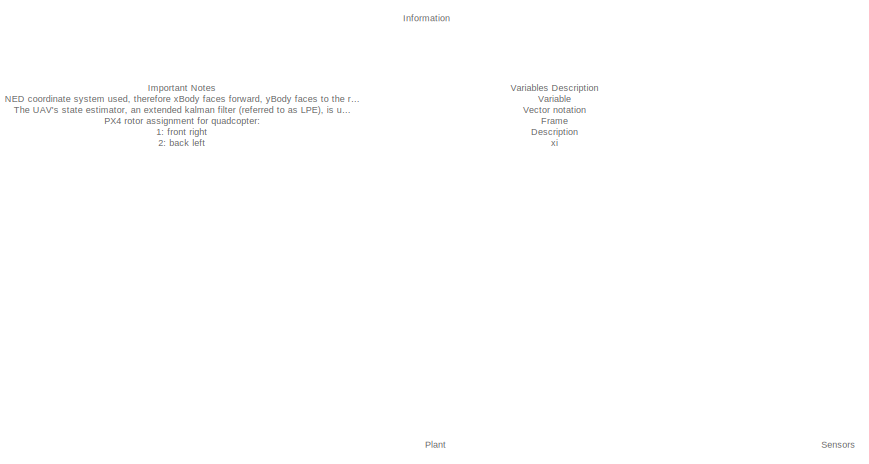
[diagram: root canvas - part 1/7, top right region]
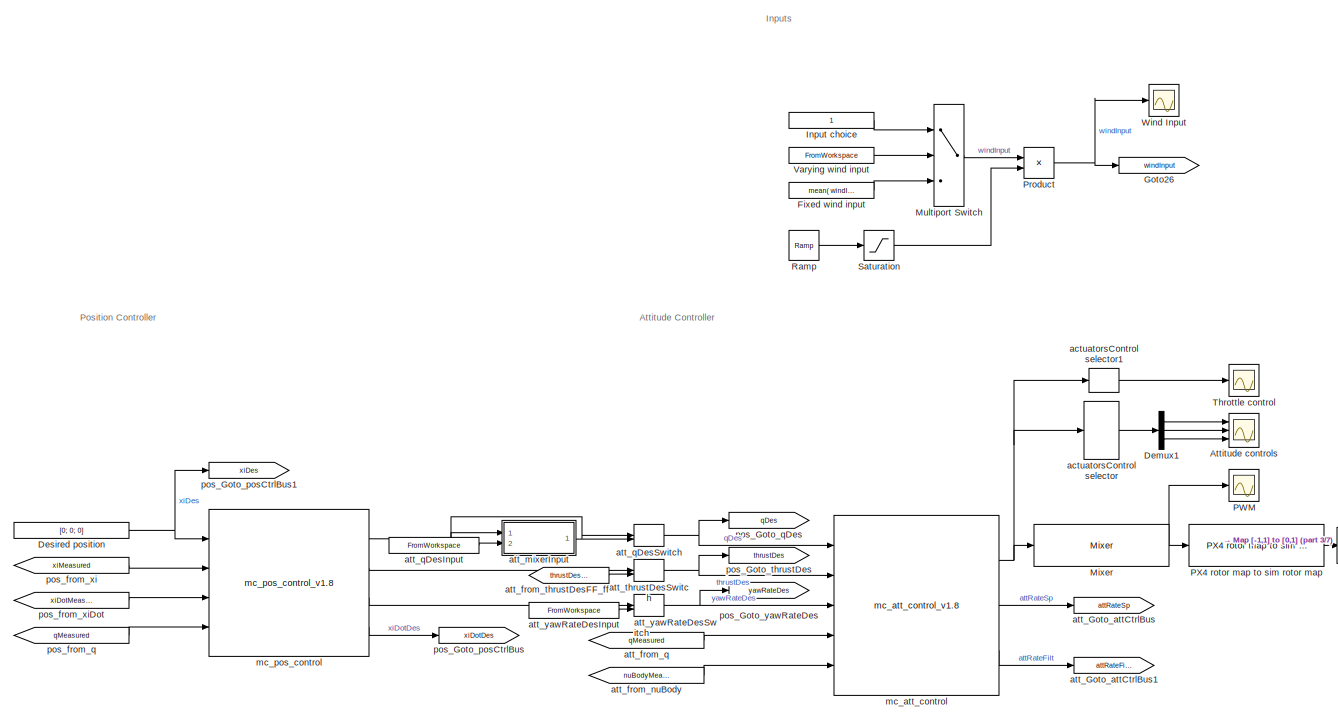
[diagram: root canvas - part 2/7, top left region]
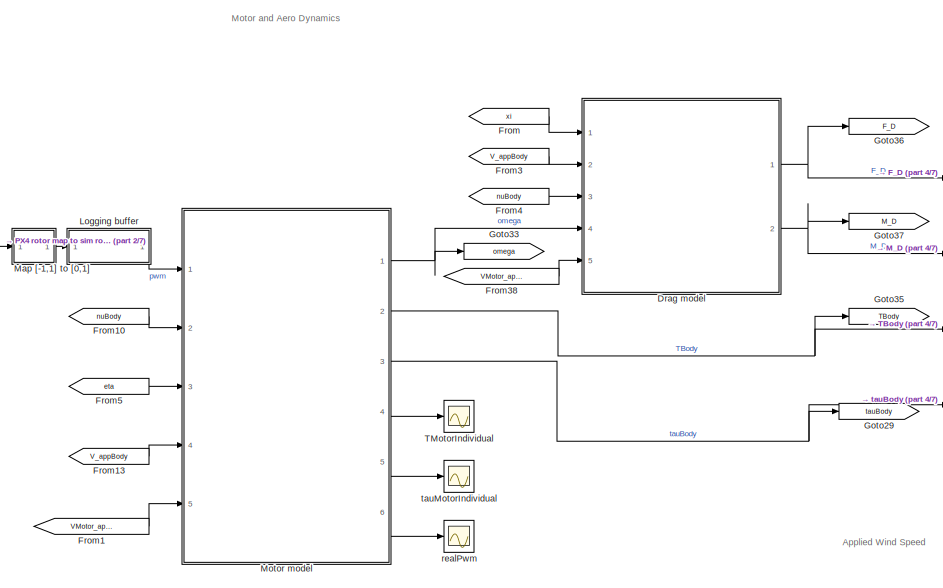
[diagram: root canvas - part 3/7, central region]
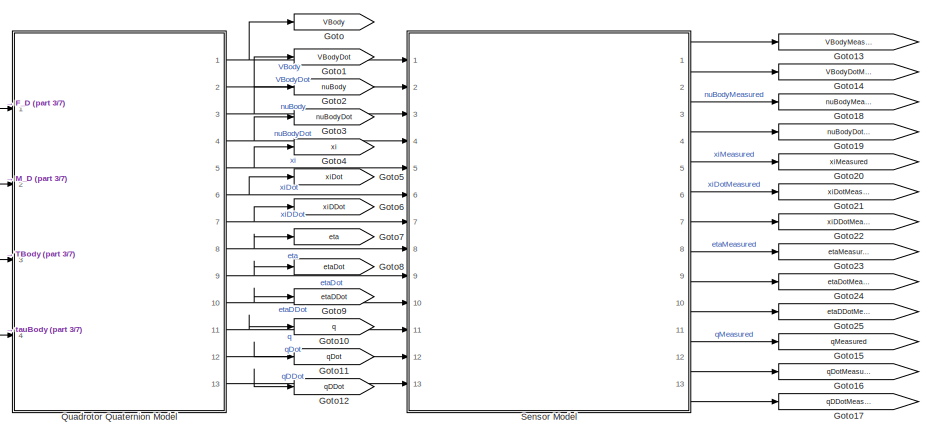
[diagram: root canvas - part 4/7, middle right region]
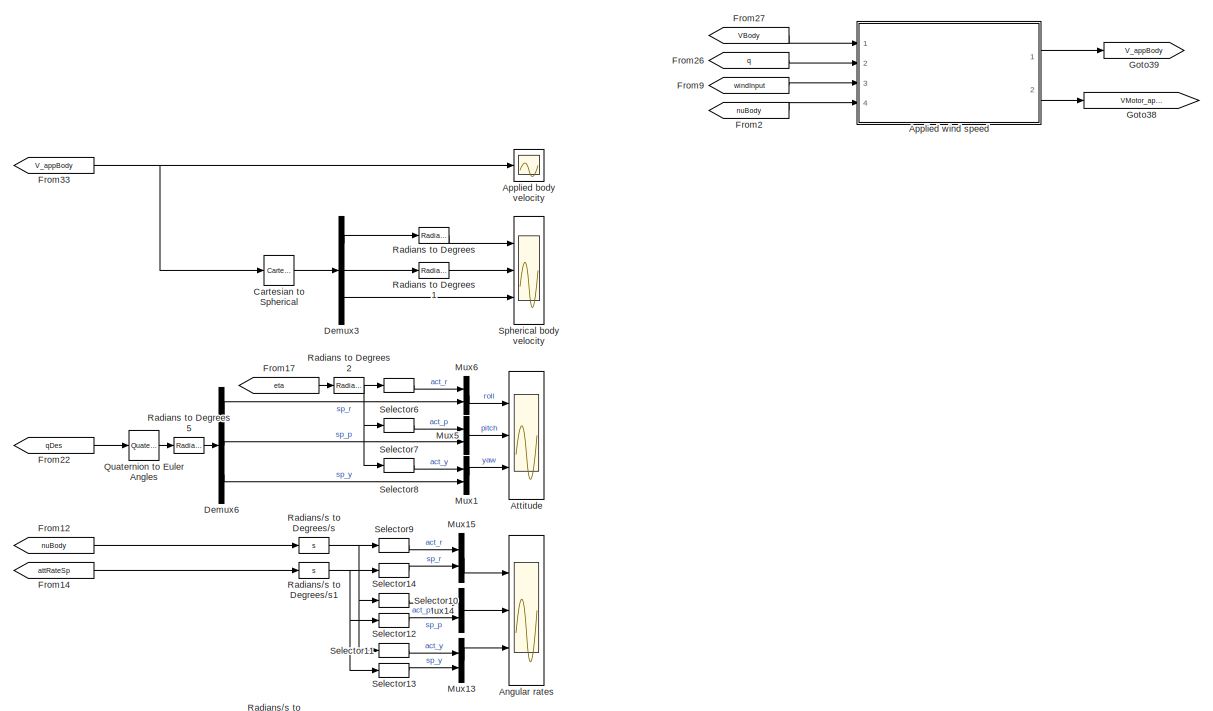
[diagram: root canvas - part 5/7, central region]
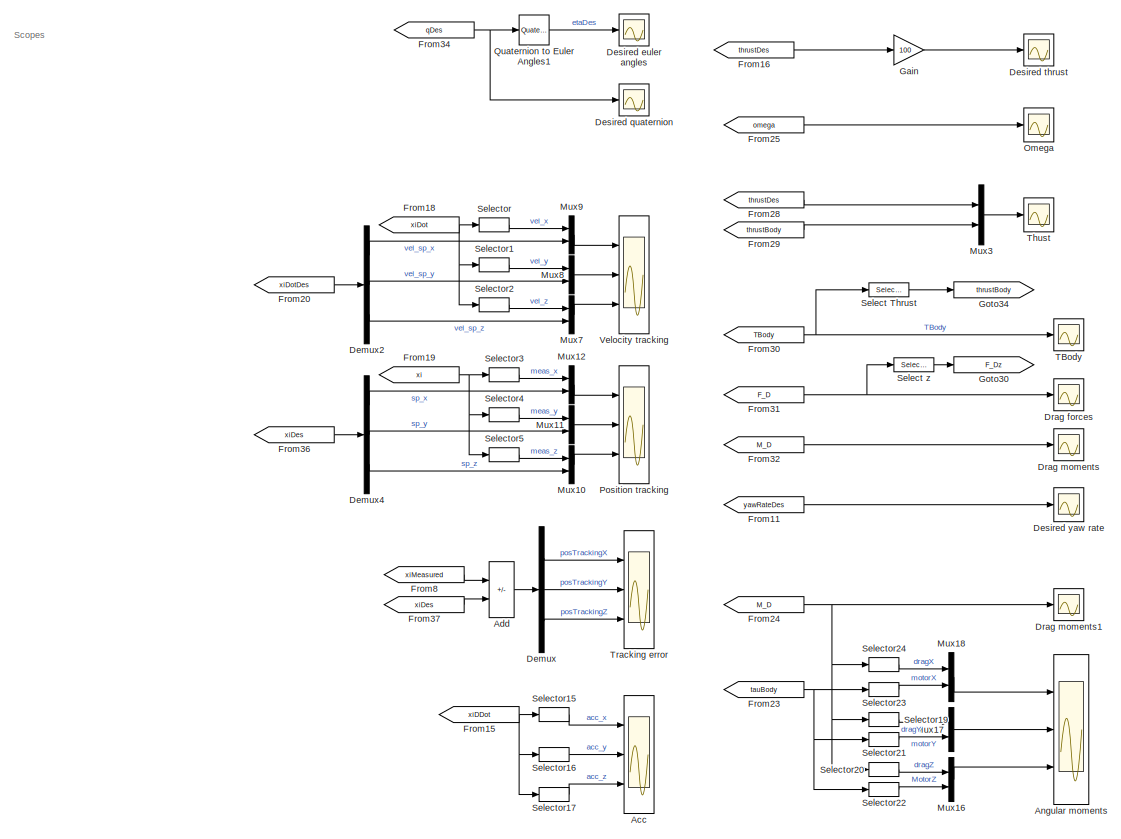
[diagram: root canvas - part 6/7, bottom left region]
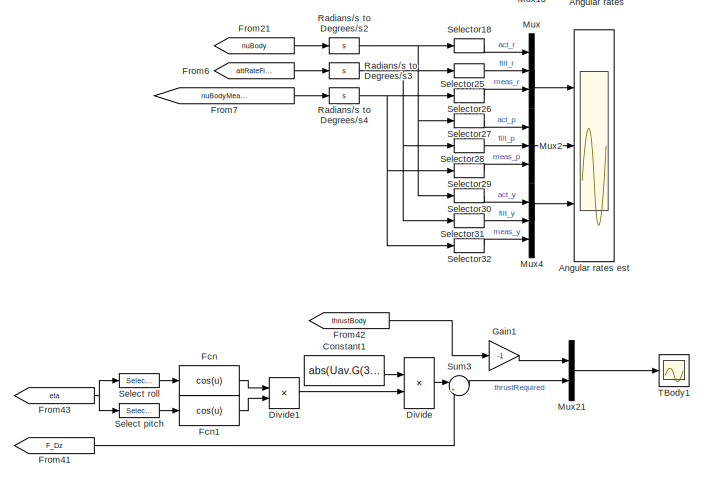
[diagram: root canvas - part 7/7, bottom center region]
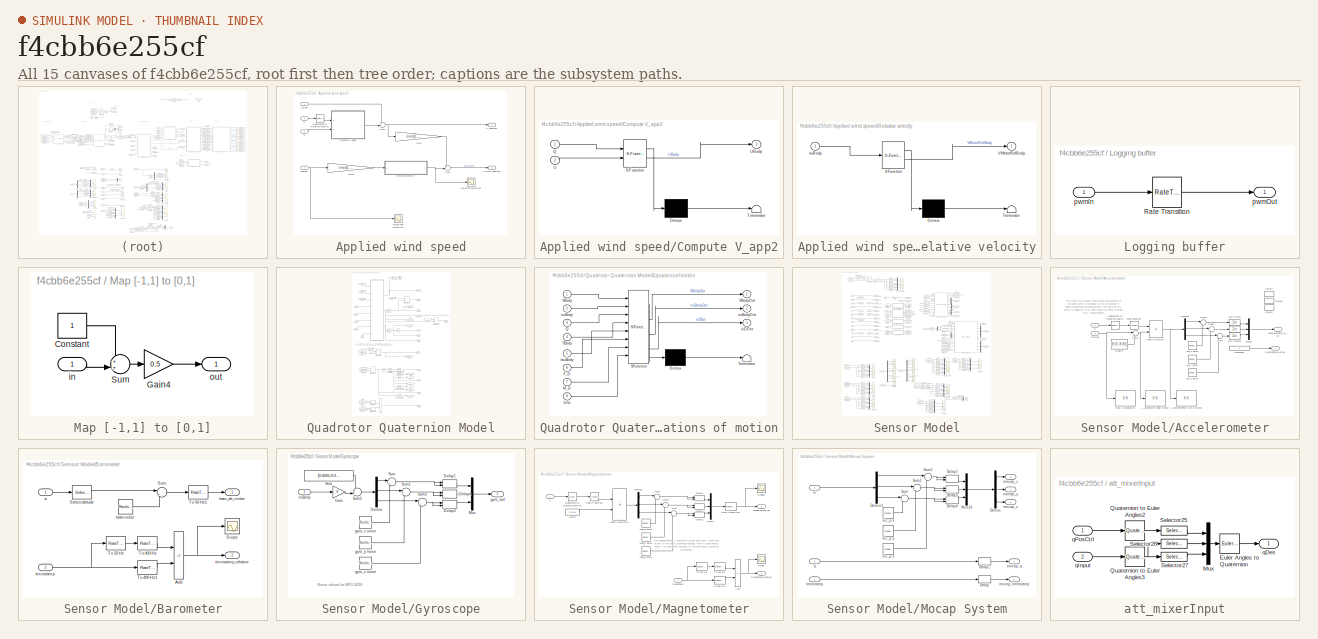
[diagram: thumbnail index - all 15 canvases of the model, root first then tree order]
MODEL slx_f4cbb6e255cf
KIND model
CONFIG AbsTol = auto
CONFIG EnableMultiTasking = on
CONFIG FixedStep = auto
CONFIG MaxStep = Simulation.TS_MAX
CONFIG MinStep = auto
CONFIG PreLoadFcn = % InitializeParameters;
CONFIG RelTol = 1e-3
CONFIG SampleTimeConstraint = Unconstrained
CONFIG SolverName = VariableStepAuto
CONFIG StartTime = 0.0
CONFIG StopTime = Simulation.T_END
BLOCK [Scope] Acc
  Floating = off
  NumInputPorts = 3
  Ports = [3]
  ScopeSpecificationString = Simulink.scopes.TimeScopeBlockCfg('CurrentConfiguration', extmgr.ConfigurationSet(extmgr.Configuration('Core','General UI',true),extmgr.Configuration('Core','Source UI',true),extmgr.Configuration('Sources','WiredSimulink',true,'DataLoggingVariableName','ScopeData1'),extmgr.Configuration('Visuals','Time Domain',true,'SerializedDisplays',{struct('MinYLimReal','-0.0000000000000018','MaxYLimReal','0.0...<+2816ch>
BLOCK [Sum] Add
  IconShape = rectangular
  Inputs = +-
  Ports = [2, 1]
BLOCK [Scope] Angular moments
  Floating = off
  NumInputPorts = 3
  Ports = [3]
  ScopeSpecificationString = Simulink.scopes.TimeScopeBlockCfg('CurrentConfiguration', extmgr.ConfigurationSet(extmgr.Configuration('Core','General UI',true),extmgr.Configuration('Core','Source UI',true),extmgr.Configuration('Sources','WiredSimulink',true,'DataLoggingVariableName','ScopeData2'),extmgr.Configuration('Visuals','Time Domain',true,'SerializedDisplays',{struct('MinYLimReal','-0.00664','MaxYLimReal','0.01072','YLab...<+2834ch>
BLOCK [Scope] Angular rates
  Floating = off
  NumInputPorts = 3
  Ports = [3]
  ScopeSpecificationString = Simulink.scopes.TimeScopeBlockCfg('CurrentConfiguration', extmgr.ConfigurationSet(extmgr.Configuration('Core','General UI',true),extmgr.Configuration('Core','Source UI',true),extmgr.Configuration('Sources','WiredSimulink',true,'DataLoggingVariableName','ScopeData1'),extmgr.Configuration('Visuals','Time Domain',true,'SerializedDisplays',{struct('MinYLimReal','-0.55216','MaxYLimReal','0.77842','YLab...<+2814ch>
BLOCK [Scope] Angular rates est
  Floating = off
  NumInputPorts = 3
  Ports = [3]
  ScopeSpecificationString = Simulink.scopes.TimeScopeBlockCfg('CurrentConfiguration', extmgr.ConfigurationSet(extmgr.Configuration('Core','General UI',true),extmgr.Configuration('Core','Source UI',true),extmgr.Configuration('Sources','WiredSimulink',true,'DataLoggingVariableName','ScopeData1'),extmgr.Configuration('Visuals','Time Domain',true,'SerializedDisplays',{struct('MinYLimReal','-0.63511','MaxYLimReal','0.67721','YLab...<+2868ch>
BLOCK [Scope] Applied body velocity
  Floating = off
  NumInputPorts = 1
  Ports = [1]
  ScopeSpecificationString = Simulink.scopes.TimeScopeBlockCfg('CurrentConfiguration', extmgr.ConfigurationSet(extmgr.Configuration('Core','General UI',true),extmgr.Configuration('Core','Source UI',true),extmgr.Configuration('Sources','WiredSimulink',true,'DataLoggingVariableName','ScopeData5'),extmgr.Configuration('Visuals','Time Domain',true,'SerializedDisplays',{struct('MinYLimReal','-0.21707','MaxYLimReal','0.12964','YLab...<+1551ch>
BLOCK [SubSystem] Applied wind speed
  Ports = [4, 2]
  RequestExecContextInheritance = off
BLOCK [SubSystem] Applied wind speed/Compute V_app2
  ErrorFcn = Stateflow.Translate.translate
  PermitHierarchicalResolution = ExplicitOnly
  Ports = [2, 1]
  RequestExecContextInheritance = off
  SFBlockType = MATLAB Function
  TreatAsAtomicUnit = on
BLOCK [Demux] Applied wind speed/Compute V_app2/ Demux 
  Outputs = 1
  Ports = [1, 1]
BLOCK [S-Function] Applied wind speed/Compute V_app2/ SFunction 
  EnableBusSupport = on
  FunctionName = sf_sfun
  PortCounts = [2 2]
  Ports = [2, 2]
  SFcnIsStateOwnerBlock = off
  SFunctionDeploymentMode = off
  Tag = Stateflow S-Function 5
BLOCK [Terminator] Applied wind speed/Compute V_app2/ Terminator 
BLOCK [Inport] Applied wind speed/Compute V_app2/Q
BLOCK [Inport] Applied wind speed/Compute V_app2/U
  Port = 2
BLOCK [Outport] Applied wind speed/Compute V_app2/UBody
  VectorParamsAs1DForOutWhenUnconnected = off
BLOCK [Gain] Applied wind speed/Gain
  Gain = ones(1,Uav.N_ROTORS)
  Multiplication = Matrix(u*K)
BLOCK [Gain] Applied wind speed/Gain1
  Gain = ones(1,Uav.N_ROTORS)
  Multiplication = Matrix(u*K)
BLOCK [Reference] Applied wind speed/Quaternion to Rotation Matrix1  REF=QuaternionLibrary/Quaternion
to Rotation Matrix
  Ports = [1, 1]
  SourceBlock = QuaternionLibrary/Quaternion\nto Rotation Matrix
BLOCK [Scope] Applied wind speed/Relative velocities
  Floating = off
  NumInputPorts = 1
  Ports = [1]
  ScopeSpecificationString = Simulink.scopes.TimeScopeBlockCfg('CurrentConfiguration', extmgr.ConfigurationSet(extmgr.Configuration('Core','General UI',true),extmgr.Configuration('Core','Source UI',true),extmgr.Configuration('Sources','WiredSimulink',true,'DataLoggingVariableName','ScopeData7'),extmgr.Configuration('Visuals','Time Domain',true,'SerializedDisplays',{struct('MinYLimReal','-0.10082','MaxYLimReal','0.10082','YLab...<+1971ch>
BLOCK [SubSystem] Applied wind speed/Relative velocity
  ErrorFcn = Stateflow.Translate.translate
  PermitHierarchicalResolution = ExplicitOnly
  Ports = [1, 1]
  RequestExecContextInheritance = off
  SFBlockType = MATLAB Function
  TreatAsAtomicUnit = on
BLOCK [Demux] Applied wind speed/Relative velocity/ Demux 
  Outputs = 1
  Ports = [1, 1]
BLOCK [S-Function] Applied wind speed/Relative velocity/ SFunction 
  EnableBusSupport = on
  FunctionName = sf_sfun
  Parameters = Uav
  PortCounts = [1 2]
  Ports = [1, 2]
  SFcnIsStateOwnerBlock = off
  SFunctionDeploymentMode = off
  Tag = Stateflow S-Function 4
BLOCK [Terminator] Applied wind speed/Relative velocity/ Terminator 
BLOCK [Outport] Applied wind speed/Relative velocity/VMotorRelBody
  VectorParamsAs1DForOutWhenUnconnected = off
BLOCK [Inport] Applied wind speed/Relative velocity/nuBody
BLOCK [Scope] Applied wind speed/Rotational velocities
  Floating = off
  NumInputPorts = 1
  Ports = [1]
  ScopeSpecificationString = Simulink.scopes.TimeScopeBlockCfg('CurrentConfiguration', extmgr.ConfigurationSet(extmgr.Configuration('Core','General UI',true),extmgr.Configuration('Core','Source UI',true),extmgr.Configuration('Sources','WiredSimulink',true,'DataLoggingVariableName','ScopeData8'),extmgr.Configuration('Visuals','Time Domain',true,'SerializedDisplays',{struct('MinYLimReal','-0.22625','MaxYLimReal','0.41313','YLab...<+1461ch>
BLOCK [Sum] Applied wind speed/Sum
  Inputs = ++|
  Ports = [2, 1]
BLOCK [Sum] Applied wind speed/Sum1
  Inputs = ++|
  Ports = [2, 1]
BLOCK [Inport] Applied wind speed/U
  Port = 3
  Unit = m/s
BLOCK [Inport] Applied wind speed/VBody
  Unit = m/s
BLOCK [Outport] Applied wind speed/VMotor_appBody
  Port = 2
  PortDimensions = [3,Uav.N_ROTORS]
  Unit = m/s
  VectorParamsAs1DForOutWhenUnconnected = off
BLOCK [Outport] Applied wind speed/V_appBody
  Unit = m/s
  VectorParamsAs1DForOutWhenUnconnected = off
BLOCK [Inport] Applied wind speed/nuBody
  Port = 4
  Unit = rad/s
BLOCK [Inport] Applied wind speed/q
  Port = 2
BLOCK [Scope] Attitude
  Floating = off
  NumInputPorts = 3
  Ports = [3]
  ScopeSpecificationString = Simulink.scopes.TimeScopeBlockCfg('CurrentConfiguration', extmgr.ConfigurationSet(extmgr.Configuration('Core','General UI',true),extmgr.Configuration('Core','Source UI',true),extmgr.Configuration('Sources','WiredSimulink',true,'DataLoggingVariableName','ScopeData1'),extmgr.Configuration('Visuals','Time Domain',true,'SerializedDisplays',{struct('MinYLimReal','-0.11237','MaxYLimReal','0.17008','YLab...<+2853ch>
BLOCK [Scope] Attitude controls
  Floating = off
  NumInputPorts = 3
  Ports = [3]
  ScopeSpecificationString = Simulink.scopes.TimeScopeBlockCfg('CurrentConfiguration', extmgr.ConfigurationSet(extmgr.Configuration('Core','General UI',true),extmgr.Configuration('Core','Source UI',true),extmgr.Configuration('Sources','WiredSimulink',true,'DataLoggingVariableName','ScopeData1'),extmgr.Configuration('Visuals','Time Domain',true,'SerializedDisplays',{struct('MinYLimReal','-0.05993','MaxYLimReal','0.0726','YLabe...<+2764ch>
BLOCK [Reference] Cartesian to Spherical  REF=QuaternionLibrary/Cartesian
to Spherical
  Ports = [1, 1]
  SourceBlock = QuaternionLibrary/Cartesian\nto Spherical
BLOCK [Constant] Constant1
  Value = abs(Uav.G(3))
BLOCK [Demux] Demux
  Outputs = 3
  Ports = [1, 3]
BLOCK [Demux] Demux1
  Outputs = 3
  Ports = [1, 3]
BLOCK [Demux] Demux2
  Outputs = 3
  Ports = [1, 3]
BLOCK [Demux] Demux3
  Outputs = 3
  Ports = [1, 3]
BLOCK [Demux] Demux4
  Outputs = 3
  Ports = [1, 3]
BLOCK [Demux] Demux6
  Outputs = 3
  Ports = [1, 3]
BLOCK [Scope] Desired euler angles
  Floating = off
  NumInputPorts = 1
  Ports = [1]
  ScopeSpecificationString = Simulink.scopes.TimeScopeBlockCfg('CurrentConfiguration', extmgr.ConfigurationSet(extmgr.Configuration('Core','General UI',true),extmgr.Configuration('Core','Source UI',true),extmgr.Configuration('Sources','WiredSimulink',true,'DataLoggingVariableName','ScopeData1','DataLoggingLimitDataPoints',true,'DataLoggingSaveFormat','Array','DataLoggingDecimation','1','DataLoggingDecimateData',true),extmgr.C...<+1591ch>
BLOCK [Constant] Desired position
  Value = [0; 0; 0]
BLOCK [Scope] Desired quaternion
  Floating = off
  NumInputPorts = 1
  Ports = [1]
  ScopeSpecificationString = Simulink.scopes.TimeScopeBlockCfg('CurrentConfiguration', extmgr.ConfigurationSet(extmgr.Configuration('Core','General UI',true),extmgr.Configuration('Core','Source UI',true),extmgr.Configuration('Sources','WiredSimulink',true,'DataLoggingVariableName','ScopeData2','DataLoggingLimitDataPoints',true,'DataLoggingSaveFormat','Array','DataLoggingDecimation','1','DataLoggingDecimateData',true),extmgr.C...<+1538ch>
BLOCK [Scope] Desired thrust
  Floating = off
  NumInputPorts = 1
  Ports = [1]
  ScopeSpecificationString = Simulink.scopes.TimeScopeBlockCfg('CurrentConfiguration', extmgr.ConfigurationSet(extmgr.Configuration('Core','General UI',true),extmgr.Configuration('Core','Source UI',true),extmgr.Configuration('Sources','WiredSimulink',true,'DataLoggingVariableName','ScopeData3'),extmgr.Configuration('Visuals','Time Domain',true,'SerializedDisplays',{struct('MinYLimReal','47.82035','MaxYLimReal','49.61685','YLa...<+1525ch>
BLOCK [Scope] Desired yaw rate
  Floating = off
  NumInputPorts = 1
  Ports = [1]
  ScopeSpecificationString = Simulink.scopes.TimeScopeBlockCfg('CurrentConfiguration', extmgr.ConfigurationSet(extmgr.Configuration('Core','General UI',true),extmgr.Configuration('Core','Source UI',true),extmgr.Configuration('Sources','WiredSimulink',true,'DataLoggingVariableName','ScopeData1'),extmgr.Configuration('Visuals','Time Domain',true,'SerializedDisplays',{struct('MinYLimReal','-1.00000','MaxYLimReal','1.00000','YLab...<+1442ch>
BLOCK [Product] Divide
  Inputs = */
  Ports = [2, 1]
BLOCK [Product] Divide1
  Inputs = **
  Ports = [2, 1]
BLOCK [Scope] Drag forces
  Floating = off
  NumInputPorts = 1
  Ports = [1]
  ScopeSpecificationString = Simulink.scopes.TimeScopeBlockCfg('CurrentConfiguration', extmgr.ConfigurationSet(extmgr.Configuration('Core','General UI',true),extmgr.Configuration('Core','Source UI',true),extmgr.Configuration('Sources','WiredSimulink',true,'DataLoggingVariableName','ScopeData2'),extmgr.Configuration('Visuals','Time Domain',true,'SerializedDisplays',{struct('MinYLimReal','-0.0009','MaxYLimReal','0.0021','YLabel...<+1460ch>
BLOCK [ModelReference] Drag model
  ModelNameDialog = DragModelAIAAv3
  ModelReferenceVersion = 5.2
  Ports = [5, 2]
BLOCK [Scope] Drag moments
  Floating = off
  NumInputPorts = 1
  Ports = [1]
  ScopeSpecificationString = Simulink.scopes.TimeScopeBlockCfg('CurrentConfiguration', extmgr.ConfigurationSet(extmgr.Configuration('Core','General UI',true),extmgr.Configuration('Core','Source UI',true),extmgr.Configuration('Sources','WiredSimulink',true,'DataLoggingVariableName','ScopeData4'),extmgr.Configuration('Visuals','Time Domain',true,'SerializedDisplays',{struct('MinYLimReal','-0.05595','MaxYLimReal','0.00623','YLab...<+1456ch>
BLOCK [Scope] Drag moments1
  Floating = off
  NumInputPorts = 1
  Ports = [1]
  ScopeSpecificationString = Simulink.scopes.TimeScopeBlockCfg('CurrentConfiguration', extmgr.ConfigurationSet(extmgr.Configuration('Core','General UI',true),extmgr.Configuration('Core','Source UI',true),extmgr.Configuration('Sources','WiredSimulink',true,'DataLoggingVariableName','ScopeData1'),extmgr.Configuration('Visuals','Time Domain',true,'SerializedDisplays',{struct('MinYLimReal','-0.06563','MaxYLimReal','0.20895','YLab...<+1459ch>
BLOCK [Fcn] Fcn
  Expr = cos(u)
BLOCK [Fcn] Fcn1
  Expr = cos(u)
BLOCK [Constant] Fixed wind input
  Value = mean( windInput )
BLOCK [From] From
  GotoTag = xi
BLOCK [From] From1
  GotoTag = VMotor_appBody
BLOCK [From] From10
  GotoTag = nuBody
BLOCK [From] From11
  GotoTag = yawRateDes
BLOCK [From] From12
  GotoTag = nuBody
BLOCK [From] From13
  GotoTag = V_appBody
BLOCK [From] From14
  GotoTag = attRateSp
BLOCK [From] From15
  GotoTag = xiDDot
BLOCK [From] From16
  GotoTag = thrustDes
BLOCK [From] From17
  GotoTag = eta
BLOCK [From] From18
  GotoTag = xiDot
BLOCK [From] From19
  GotoTag = xi
BLOCK [From] From2
  GotoTag = nuBody
BLOCK [From] From20
  GotoTag = xiDotDes
BLOCK [From] From21
  GotoTag = nuBody
BLOCK [From] From22
  GotoTag = qDes
BLOCK [From] From23
  GotoTag = tauBody
BLOCK [From] From24
  GotoTag = M_D
BLOCK [From] From25
  GotoTag = omega
BLOCK [From] From26
  GotoTag = q
BLOCK [From] From27
  GotoTag = VBody
BLOCK [From] From28
  GotoTag = thrustDes
BLOCK [From] From29
  GotoTag = thrustBody
BLOCK [From] From3
  GotoTag = V_appBody
BLOCK [From] From30
  GotoTag = TBody
BLOCK [From] From31
  GotoTag = F_D
BLOCK [From] From32
  GotoTag = M_D
BLOCK [From] From33
  GotoTag = V_appBody
BLOCK [From] From34
  GotoTag = qDes
BLOCK [From] From36
  GotoTag = xiDes
BLOCK [From] From37
  GotoTag = xiDes
BLOCK [From] From38
  GotoTag = VMotor_appBody
BLOCK [From] From4
  GotoTag = nuBody
BLOCK [From] From41
  GotoTag = F_Dz
BLOCK [From] From42
  GotoTag = thrustBody
BLOCK [From] From43
  GotoTag = eta
BLOCK [From] From5
  GotoTag = eta
BLOCK [From] From6
  GotoTag = attRateFilt
BLOCK [From] From7
  GotoTag = nuBodyMeasured
BLOCK [From] From8
  GotoTag = xiMeasured
BLOCK [From] From9
  GotoTag = windInput
BLOCK [Gain] Gain
  Gain = 100
BLOCK [Gain] Gain1
  Gain = -1
BLOCK [Goto] Goto
  GotoTag = VBody
BLOCK [Goto] Goto1
  GotoTag = VBodyDot
BLOCK [Goto] Goto10
  GotoTag = q
BLOCK [Goto] Goto11
  GotoTag = qDot
BLOCK [Goto] Goto12
  GotoTag = qDDot
BLOCK [Goto] Goto13
  GotoTag = VBodyMeasured
BLOCK [Goto] Goto14
  GotoTag = VBodyDotMeasured
BLOCK [Goto] Goto15
  GotoTag = qMeasured
BLOCK [Goto] Goto16
  GotoTag = qDotMeasured
BLOCK [Goto] Goto17
  GotoTag = qDDotMeasured
BLOCK [Goto] Goto18
  GotoTag = nuBodyMeasured
BLOCK [Goto] Goto19
  GotoTag = nuBodyDotMeasured
BLOCK [Goto] Goto2
  GotoTag = nuBody
BLOCK [Goto] Goto20
  GotoTag = xiMeasured
BLOCK [Goto] Goto21
  GotoTag = xiDotMeasured
BLOCK [Goto] Goto22
  GotoTag = xiDDotMeasured
BLOCK [Goto] Goto23
  GotoTag = etaMeasured
BLOCK [Goto] Goto24
  GotoTag = etaDotMeasured
BLOCK [Goto] Goto25
  GotoTag = etaDDotMeasured
BLOCK [Goto] Goto26
  GotoTag = windInput
BLOCK [Goto] Goto29
  GotoTag = tauBody
BLOCK [Goto] Goto3
  GotoTag = nuBodyDot
BLOCK [Goto] Goto30
  GotoTag = F_Dz
BLOCK [Goto] Goto33
  GotoTag = omega
BLOCK [Goto] Goto34
  GotoTag = thrustBody
BLOCK [Goto] Goto35
  GotoTag = TBody
BLOCK [Goto] Goto36
  GotoTag = F_D
BLOCK [Goto] Goto37
  GotoTag = M_D
BLOCK [Goto] Goto38
  GotoTag = VMotor_appBody
BLOCK [Goto] Goto39
  GotoTag = V_appBody
BLOCK [Goto] Goto4
  GotoTag = xi
BLOCK [Goto] Goto5
  GotoTag = xiDot
BLOCK [Goto] Goto6
  GotoTag = xiDDot
BLOCK [Goto] Goto7
  GotoTag = eta
BLOCK [Goto] Goto8
  GotoTag = etaDot
BLOCK [Goto] Goto9
  GotoTag = etaDDot
BLOCK [Constant] Input choice
BLOCK [SubSystem] Logging buffer
  Ports = [1, 1]
  RequestExecContextInheritance = off
BLOCK [RateTransition] Logging buffer/Rate Transition
BLOCK [Inport] Logging buffer/pwmIn
BLOCK [Outport] Logging buffer/pwmOut
  VectorParamsAs1DForOutWhenUnconnected = off
BLOCK [SubSystem] Map [-1,1] to [0,1]
  Ports = [1, 1]
  RequestExecContextInheritance = off
BLOCK [Constant] Map [-1,1] to [0,1]/Constant
BLOCK [Gain] Map [-1,1] to [0,1]/Gain4
  Gain = 0.5
BLOCK [Sum] Map [-1,1] to [0,1]/Sum
  Inputs = ++|
  Ports = [2, 1]
BLOCK [Inport] Map [-1,1] to [0,1]/in
BLOCK [Outport] Map [-1,1] to [0,1]/out
  VectorParamsAs1DForOutWhenUnconnected = off
BLOCK [Reference] Mixer  REF=Px4Library/Mixer
  Ports = [1, 1]
  SourceBlock = Px4Library/Mixer
  SourceType = MultirotorMixer
BLOCK [ModelReference] Motor model
  ModelNameDialog = MotorModelZJChen
  ModelReferenceVersion = 5.16
  Ports = [5, 6]
BLOCK [MultiPortSwitch] Multiport Switch
  InputSameDT = off
  Inputs = 2
  Ports = [3, 1]
  SaturateOnIntegerOverflow = off
BLOCK [Mux] Mux
  DisplayOption = bar
  Inputs = 3
  Ports = [3, 1]
BLOCK [Mux] Mux1
  DisplayOption = bar
  Inputs = 2
  Ports = [2, 1]
BLOCK [Mux] Mux10
  DisplayOption = bar
  Inputs = 2
  Ports = [2, 1]
BLOCK [Mux] Mux11
  DisplayOption = bar
  Inputs = 2
  Ports = [2, 1]
BLOCK [Mux] Mux12
  DisplayOption = bar
  Inputs = 2
  Ports = [2, 1]
BLOCK [Mux] Mux13
  DisplayOption = bar
  Inputs = 2
  Ports = [2, 1]
BLOCK [Mux] Mux14
  DisplayOption = bar
  Inputs = 2
  Ports = [2, 1]
BLOCK [Mux] Mux15
  DisplayOption = bar
  Inputs = 2
  Ports = [2, 1]
BLOCK [Mux] Mux16
  DisplayOption = bar
  Inputs = 2
  Ports = [2, 1]
BLOCK [Mux] Mux17
  DisplayOption = bar
  Inputs = 2
  Ports = [2, 1]
BLOCK [Mux] Mux18
  DisplayOption = bar
  Inputs = 2
  Ports = [2, 1]
BLOCK [Mux] Mux2
  DisplayOption = bar
  Inputs = 3
  Ports = [3, 1]
BLOCK [Mux] Mux21
  DisplayOption = bar
  Inputs = 2
  Ports = [2, 1]
BLOCK [Mux] Mux3
  DisplayOption = bar
  Inputs = 2
  Ports = [2, 1]
BLOCK [Mux] Mux4
  DisplayOption = bar
  Inputs = 3
  Ports = [3, 1]
BLOCK [Mux] Mux5
  DisplayOption = bar
  Inputs = 2
  Ports = [2, 1]
BLOCK [Mux] Mux6
  DisplayOption = bar
  Inputs = 2
  Ports = [2, 1]
BLOCK [Mux] Mux7
  DisplayOption = bar
  Inputs = 2
  Ports = [2, 1]
BLOCK [Mux] Mux8
  DisplayOption = bar
  Inputs = 2
  Ports = [2, 1]
BLOCK [Mux] Mux9
  DisplayOption = bar
  Inputs = 2
  Ports = [2, 1]
BLOCK [Scope] Omega
  Floating = off
  NumInputPorts = 1
  Ports = [1]
  ScopeSpecificationString = Simulink.scopes.TimeScopeBlockCfg('CurrentConfiguration', extmgr.ConfigurationSet(extmgr.Configuration('Core','General UI',true),extmgr.Configuration('Core','Source UI',true),extmgr.Configuration('Sources','WiredSimulink',true,'DataLoggingVariableName','ScopeData3'),extmgr.Configuration('Visuals','Time Domain',true,'SerializedDisplays',{struct('MinYLimReal','784.39142','MaxYLimReal','1712.05319','...<+1561ch>
BLOCK [Scope] PWM
  Floating = off
  NumInputPorts = 1
  Ports = [1]
  ScopeSpecificationString = Simulink.scopes.TimeScopeBlockCfg('CurrentConfiguration', extmgr.ConfigurationSet(extmgr.Configuration('Core','General UI',true),extmgr.Configuration('Core','Source UI',true),extmgr.Configuration('Sources','WiredSimulink',true,'DataLoggingVariableName','ScopeData2'),extmgr.Configuration('Visuals','Time Domain',true,'SerializedDisplays',{struct('MinYLimReal','-0.33672','MaxYLimReal','0.2492','YLabe...<+1506ch>
BLOCK [Reference] PX4 rotor map to sim rotor map  REF=Px4Library/PX4 rotor map to sim rotor map
  Ports = [1, 1]
  SourceBlock = Px4Library/PX4 rotor map to sim rotor map
  SourceType = MotorMap
BLOCK [Scope] Position tracking
  Floating = off
  NumInputPorts = 3
  Ports = [3]
  ScopeSpecificationString = Simulink.scopes.TimeScopeBlockCfg('CurrentConfiguration', extmgr.ConfigurationSet(extmgr.Configuration('Core','General UI',true),extmgr.Configuration('Core','Source UI',true),extmgr.Configuration('Sources','WiredSimulink',true,'DataLoggingVariableName','ScopeData4'),extmgr.Configuration('Visuals','Time Domain',true,'SerializedDisplays',{struct('MinYLimReal','-0.0045','MaxYLimReal','0.0058','YLabel...<+2834ch>
BLOCK [Product] Product
  Ports = [2, 1]
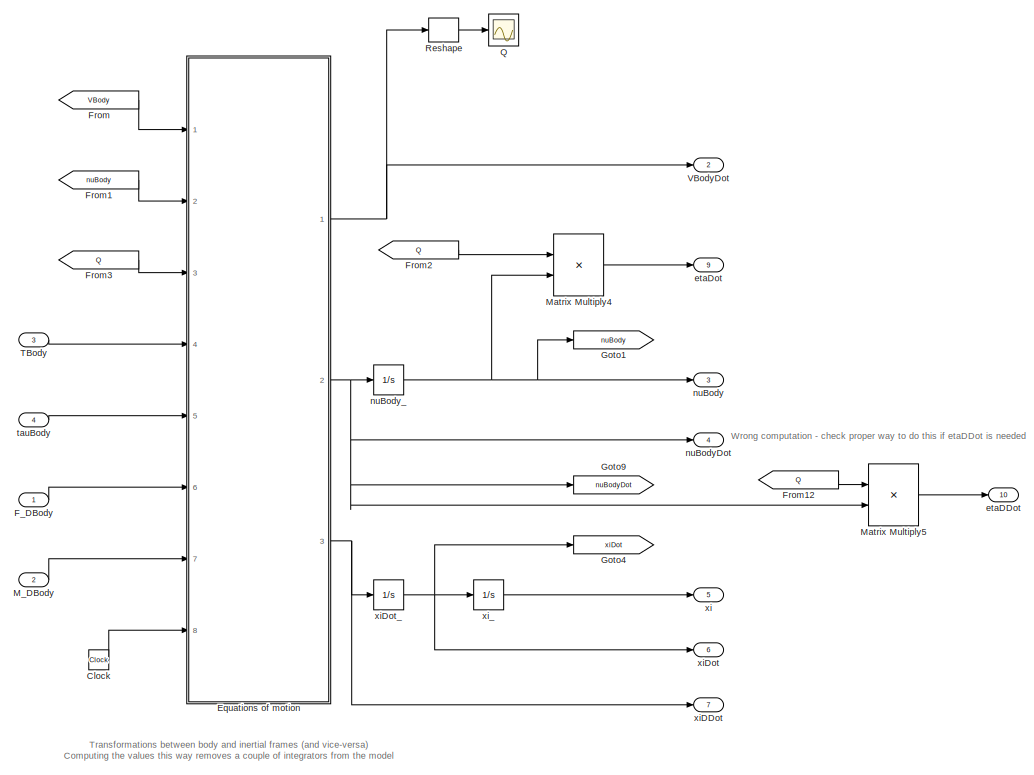
[diagram: Quadrotor Quaternion Model - part 1/2, full width, top band]
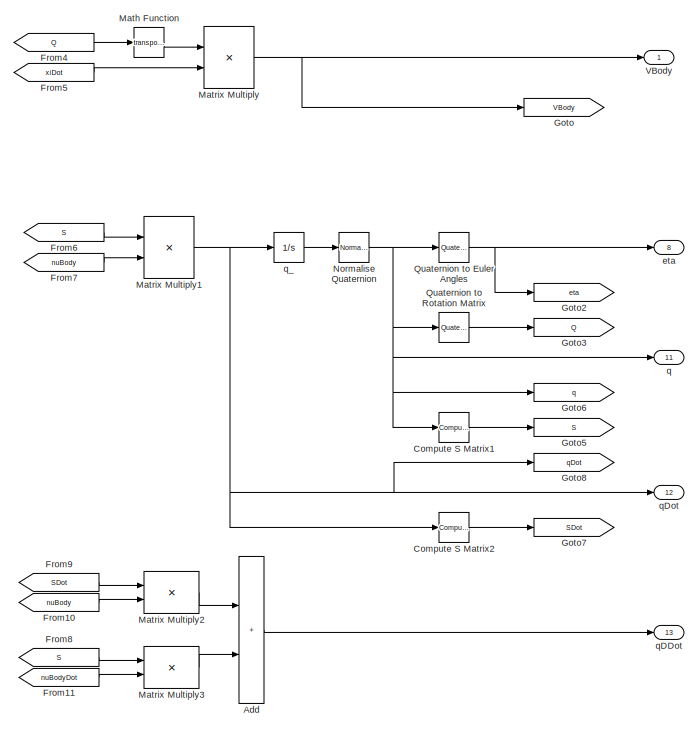
[diagram: Quadrotor Quaternion Model - part 2/2, bottom center region]
BLOCK [SubSystem] Quadrotor Quaternion Model
  Ports = [4, 13]
  RequestExecContextInheritance = off
BLOCK [Sum] Quadrotor Quaternion Model/Add
  IconShape = rectangular
  Ports = [2, 1]
BLOCK [Clock] Quadrotor Quaternion Model/Clock
BLOCK [Reference] Quadrotor Quaternion Model/Compute S Matrix1  REF=QuaternionLibrary/Compute
S Matrix
  Ports = [1, 1]
  SourceBlock = QuaternionLibrary/Compute\nS Matrix
BLOCK [Reference] Quadrotor Quaternion Model/Compute S Matrix2  REF=QuaternionLibrary/Compute
S Matrix
  Ports = [1, 1]
  SourceBlock = QuaternionLibrary/Compute\nS Matrix
BLOCK [SubSystem] Quadrotor Quaternion Model/Equations of motion
  ErrorFcn = Stateflow.Translate.translate
  PermitHierarchicalResolution = ExplicitOnly
  Ports = [8, 3]
  RequestExecContextInheritance = off
  SFBlockType = MATLAB Function
  TreatAsAtomicUnit = on
BLOCK [Demux] Quadrotor Quaternion Model/Equations of motion/ Demux 
  Outputs = 1
  Ports = [1, 1]
BLOCK [S-Function] Quadrotor Quaternion Model/Equations of motion/ SFunction 
  EnableBusSupport = on
  FunctionName = sf_sfun
  Parameters = Simulation,Uav
  PortCounts = [8 4]
  Ports = [8, 4]
  SFcnIsStateOwnerBlock = off
  SFunctionDeploymentMode = off
  Tag = Stateflow S-Function 1
BLOCK [Terminator] Quadrotor Quaternion Model/Equations of motion/ Terminator 
BLOCK [Inport] Quadrotor Quaternion Model/Equations of motion/F_D
  Port = 6
BLOCK [Inport] Quadrotor Quaternion Model/Equations of motion/M_D
  Port = 7
BLOCK [Inport] Quadrotor Quaternion Model/Equations of motion/Q
  Port = 3
BLOCK [Inport] Quadrotor Quaternion Model/Equations of motion/TBody
  Port = 4
BLOCK [Inport] Quadrotor Quaternion Model/Equations of motion/VBody
BLOCK [Outport] Quadrotor Quaternion Model/Equations of motion/VBodyDot
  VectorParamsAs1DForOutWhenUnconnected = off
BLOCK [Inport] Quadrotor Quaternion Model/Equations of motion/nuBody
  Port = 2
BLOCK [Outport] Quadrotor Quaternion Model/Equations of motion/nuBodyDot
  Port = 2
  VectorParamsAs1DForOutWhenUnconnected = off
BLOCK [Inport] Quadrotor Quaternion Model/Equations of motion/tauBody
  Port = 5
BLOCK [Inport] Quadrotor Quaternion Model/Equations of motion/time
  Port = 8
BLOCK [Outport] Quadrotor Quaternion Model/Equations of motion/xiDDot
  Port = 3
  VectorParamsAs1DForOutWhenUnconnected = off
BLOCK [Inport] Quadrotor Quaternion Model/F_DBody
  Unit = N
BLOCK [From] Quadrotor Quaternion Model/From
  GotoTag = VBody
BLOCK [From] Quadrotor Quaternion Model/From1
  GotoTag = nuBody
BLOCK [From] Quadrotor Quaternion Model/From10
  GotoTag = nuBody
BLOCK [From] Quadrotor Quaternion Model/From11
  GotoTag = nuBodyDot
BLOCK [From] Quadrotor Quaternion Model/From12
  GotoTag = Q
BLOCK [From] Quadrotor Quaternion Model/From2
  GotoTag = Q
BLOCK [From] Quadrotor Quaternion Model/From3
  GotoTag = Q
BLOCK [From] Quadrotor Quaternion Model/From4
  GotoTag = Q
BLOCK [From] Quadrotor Quaternion Model/From5
  GotoTag = xiDot
BLOCK [From] Quadrotor Quaternion Model/From6
  GotoTag = S
BLOCK [From] Quadrotor Quaternion Model/From7
  GotoTag = nuBody
BLOCK [From] Quadrotor Quaternion Model/From8
  GotoTag = S
BLOCK [From] Quadrotor Quaternion Model/From9
  GotoTag = SDot
BLOCK [Goto] Quadrotor Quaternion Model/Goto
  GotoTag = VBody
BLOCK [Goto] Quadrotor Quaternion Model/Goto1
  GotoTag = nuBody
BLOCK [Goto] Quadrotor Quaternion Model/Goto2
  GotoTag = eta
BLOCK [Goto] Quadrotor Quaternion Model/Goto3
  GotoTag = Q
BLOCK [Goto] Quadrotor Quaternion Model/Goto4
  GotoTag = xiDot
BLOCK [Goto] Quadrotor Quaternion Model/Goto5
  GotoTag = S
BLOCK [Goto] Quadrotor Quaternion Model/Goto6
  GotoTag = q
BLOCK [Goto] Quadrotor Quaternion Model/Goto7
  GotoTag = SDot
BLOCK [Goto] Quadrotor Quaternion Model/Goto8
  GotoTag = qDot
BLOCK [Goto] Quadrotor Quaternion Model/Goto9
  GotoTag = nuBodyDot
BLOCK [Inport] Quadrotor Quaternion Model/M_DBody
  Port = 2
  Unit = N*m
BLOCK [Math] Quadrotor Quaternion Model/Math Function
  Operator = transpose
  Ports = [1, 1]
  SignedPower = on
BLOCK [Product] Quadrotor Quaternion Model/Matrix Multiply
  Multiplication = Matrix(*)
  Ports = [2, 1]
BLOCK [Product] Quadrotor Quaternion Model/Matrix Multiply1
  Multiplication = Matrix(*)
  Ports = [2, 1]
BLOCK [Product] Quadrotor Quaternion Model/Matrix Multiply2
  Multiplication = Matrix(*)
  Ports = [2, 1]
BLOCK [Product] Quadrotor Quaternion Model/Matrix Multiply3
  Multiplication = Matrix(*)
  Ports = [2, 1]
BLOCK [Product] Quadrotor Quaternion Model/Matrix Multiply4
  Multiplication = Matrix(*)
  Ports = [2, 1]
BLOCK [Product] Quadrotor Quaternion Model/Matrix Multiply5
  Multiplication = Matrix(*)
  Ports = [2, 1]
BLOCK [Reference] Quadrotor Quaternion Model/Normalise Quaternion  REF=QuaternionLibrary/Normalise
Quaternion
  Ports = [1, 1]
  SourceBlock = QuaternionLibrary/Normalise\nQuaternion
BLOCK [Scope] Quadrotor Quaternion Model/Q
  Floating = off
  NumInputPorts = 1
  Ports = [1]
  ScopeSpecificationString = Simulink.scopes.TimeScopeBlockCfg('CurrentConfiguration', extmgr.ConfigurationSet(extmgr.Configuration('Core','General UI',true),extmgr.Configuration('Core','Source UI',true),extmgr.Configuration('Sources','WiredSimulink',true,'DataLoggingVariableName','ScopeData3','DataLoggingLimitDataPoints',true,'DataLoggingSaveFormat','Array','DataLoggingDecimation','1','DataLoggingDecimateData',true),extmgr.C...<+1517ch>
BLOCK [Reference] Quadrotor Quaternion Model/Quaternion to Euler Angles  REF=QuaternionLibrary/Quaternion
to Euler Angles
  Ports = [1, 1]
  SourceBlock = QuaternionLibrary/Quaternion\nto Euler Angles
BLOCK [Reference] Quadrotor Quaternion Model/Quaternion to Rotation Matrix  REF=QuaternionLibrary/Quaternion
to Rotation Matrix
  Ports = [1, 1]
  SourceBlock = QuaternionLibrary/Quaternion\nto Rotation Matrix
BLOCK [Reshape] Quadrotor Quaternion Model/Reshape
  OutputDimensionality = Column vector (2-D)
  Ports = [1, 1]
BLOCK [Inport] Quadrotor Quaternion Model/TBody
  Port = 3
  Unit = N
BLOCK [Outport] Quadrotor Quaternion Model/VBody
  Unit = m/s
  VectorParamsAs1DForOutWhenUnconnected = off
BLOCK [Outport] Quadrotor Quaternion Model/VBodyDot
  Port = 2
  Unit = m/s^2
  VectorParamsAs1DForOutWhenUnconnected = off
BLOCK [Outport] Quadrotor Quaternion Model/eta
  Port = 8
  Unit = rad
  VectorParamsAs1DForOutWhenUnconnected = off
BLOCK [Outport] Quadrotor Quaternion Model/etaDDot
  Port = 10
  Unit = rad/s^2
  VectorParamsAs1DForOutWhenUnconnected = off
BLOCK [Outport] Quadrotor Quaternion Model/etaDot
  Port = 9
  Unit = rad/s
  VectorParamsAs1DForOutWhenUnconnected = off
BLOCK [Outport] Quadrotor Quaternion Model/nuBody
  Port = 3
  Unit = rad/s
  VectorParamsAs1DForOutWhenUnconnected = off
BLOCK [Outport] Quadrotor Quaternion Model/nuBodyDot
  Port = 4
  Unit = rad/s^2
  VectorParamsAs1DForOutWhenUnconnected = off
BLOCK [Integrator] Quadrotor Quaternion Model/nuBody_
  ContinuousStateAttributes = 'nuBody'
  InitialCondition = Initial.NU_BODY
  Ports = [1, 1]
BLOCK [Outport] Quadrotor Quaternion Model/q
  Port = 11
  VectorParamsAs1DForOutWhenUnconnected = off
BLOCK [Outport] Quadrotor Quaternion Model/qDDot
  Port = 13
  VectorParamsAs1DForOutWhenUnconnected = off
BLOCK [Outport] Quadrotor Quaternion Model/qDot
  Port = 12
  VectorParamsAs1DForOutWhenUnconnected = off
BLOCK [Integrator] Quadrotor Quaternion Model/q_
  ContinuousStateAttributes = 'q'
  InitialCondition = Initial.Q
  Ports = [1, 1]
BLOCK [Inport] Quadrotor Quaternion Model/tauBody
  Port = 4
  Unit = N*m
BLOCK [Outport] Quadrotor Quaternion Model/xi
  Port = 5
  Unit = m
  VectorParamsAs1DForOutWhenUnconnected = off
BLOCK [Outport] Quadrotor Quaternion Model/xiDDot
  Port = 7
  Unit = m/s^2
  VectorParamsAs1DForOutWhenUnconnected = off
BLOCK [Outport] Quadrotor Quaternion Model/xiDot
  Port = 6
  Unit = m/s
  VectorParamsAs1DForOutWhenUnconnected = off
BLOCK [Integrator] Quadrotor Quaternion Model/xiDot_
  ContinuousStateAttributes = 'xiDot'
  InitialCondition = Initial.XI_DOT
  Ports = [1, 1]
BLOCK [Integrator] Quadrotor Quaternion Model/xi_
  ContinuousStateAttributes = 'xi'
  InitialCondition = Initial.XI
  Ports = [1, 1]
BLOCK [Reference] Quaternion to Euler Angles  REF=QuaternionLibrary/Quaternion
to Euler Angles
  Ports = [1, 1]
  SourceBlock = QuaternionLibrary/Quaternion\nto Euler Angles
BLOCK [Reference] Quaternion to Euler Angles1  REF=QuaternionLibrary/Quaternion
to Euler Angles
  Ports = [1, 1]
  SourceBlock = QuaternionLibrary/Quaternion\nto Euler Angles
BLOCK [Reference] Radians to Degrees   REF=QuaternionLibrary/Radians
to Degrees 
  Ports = [1, 1]
  SourceBlock = QuaternionLibrary/Radians\nto Degrees
BLOCK [Reference] Radians to Degrees 1  REF=QuaternionLibrary/Radians
to Degrees 
  Ports = [1, 1]
  SourceBlock = QuaternionLibrary/Radians\nto Degrees
BLOCK [Reference] Radians to Degrees 2  REF=QuaternionLibrary/Radians
to Degrees 
  Ports = [1, 1]
  SourceBlock = QuaternionLibrary/Radians\nto Degrees
BLOCK [Reference] Radians to Degrees 5  REF=QuaternionLibrary/Radians
to Degrees 
  Ports = [1, 1]
  SourceBlock = QuaternionLibrary/Radians\nto Degrees
BLOCK [Reference] Radians//s to Degrees//s  REF=QuaternionLibrary/Radians//s
to Degrees//s
  Ports = [1, 1]
  SourceBlock = QuaternionLibrary/Radians//s\nto Degrees//s
BLOCK [Reference] Radians//s to Degrees//s1  REF=QuaternionLibrary/Radians//s
to Degrees//s
  Ports = [1, 1]
  SourceBlock = QuaternionLibrary/Radians//s\nto Degrees//s
BLOCK [Reference] Radians//s to Degrees//s2  REF=QuaternionLibrary/Radians//s
to Degrees//s
  Ports = [1, 1]
  SourceBlock = QuaternionLibrary/Radians//s\nto Degrees//s
BLOCK [Reference] Radians//s to Degrees//s3  REF=QuaternionLibrary/Radians//s
to Degrees//s
  Ports = [1, 1]
  SourceBlock = QuaternionLibrary/Radians//s\nto Degrees//s
BLOCK [Reference] Radians//s to Degrees//s4  REF=QuaternionLibrary/Radians//s
to Degrees//s
  Ports = [1, 1]
  SourceBlock = QuaternionLibrary/Radians//s\nto Degrees//s
BLOCK [Reference] Ramp  REF=simulink/Sources/Ramp
  Ports = [0, 1]
  SourceBlock = simulink/Sources/Ramp
  SourceProductBaseCode = SL
  SourceType = Ramp
BLOCK [Saturate] Saturation
  LowerLimit = 0
  UpperLimit = 1
BLOCK [Selector] Select Thrust
  IndexOptions = Index vector (dialog)
  Indices = [3]
  InputPortWidth = 3
  OutputSizes = 1
  Ports = [1, 1]
BLOCK [Selector] Select pitch
  IndexOptions = Index vector (dialog)
  Indices = 2
  InputPortWidth = 3
  OutputSizes = 1
  Ports = [1, 1]
BLOCK [Selector] Select roll
  IndexOptions = Index vector (dialog)
  Indices = 1
  InputPortWidth = 3
  OutputSizes = 1
  Ports = [1, 1]
BLOCK [Selector] Select z
  IndexOptions = Index vector (dialog)
  Indices = [3]
  InputPortWidth = 3
  OutputSizes = 1
  Ports = [1, 1]
BLOCK [Selector] Selector
  IndexOptions = Index vector (dialog)
  Indices = 1
  InputPortWidth = 3
  OutputSizes = 1
  Ports = [1, 1]
BLOCK [Selector] Selector1
  IndexOptions = Index vector (dialog)
  Indices = 2
  InputPortWidth = 3
  OutputSizes = 1
  Ports = [1, 1]
BLOCK [Selector] Selector10
  IndexOptions = Index vector (dialog)
  Indices = 2
  InputPortWidth = 3
  OutputSizes = 1
  Ports = [1, 1]
BLOCK [Selector] Selector11
  IndexOptions = Index vector (dialog)
  Indices = 3
  InputPortWidth = 3
  OutputSizes = 1
  Ports = [1, 1]
BLOCK [Selector] Selector12
  IndexOptions = Index vector (dialog)
  Indices = 2
  InputPortWidth = 3
  OutputSizes = 1
  Ports = [1, 1]
BLOCK [Selector] Selector13
  IndexOptions = Index vector (dialog)
  Indices = 3
  InputPortWidth = 3
  OutputSizes = 1
  Ports = [1, 1]
BLOCK [Selector] Selector14
  IndexOptions = Index vector (dialog)
  Indices = 1
  InputPortWidth = 3
  OutputSizes = 1
  Ports = [1, 1]
BLOCK [Selector] Selector15
  IndexOptions = Index vector (dialog)
  Indices = 1
  InputPortWidth = 3
  OutputSizes = 1
  Ports = [1, 1]
BLOCK [Selector] Selector16
  IndexOptions = Index vector (dialog)
  Indices = 2
  InputPortWidth = 3
  OutputSizes = 1
  Ports = [1, 1]
BLOCK [Selector] Selector17
  IndexOptions = Index vector (dialog)
  Indices = 3
  InputPortWidth = 3
  OutputSizes = 1
  Ports = [1, 1]
BLOCK [Selector] Selector18
  IndexOptions = Index vector (dialog)
  Indices = 1
  InputPortWidth = 3
  OutputSizes = 1
  Ports = [1, 1]
BLOCK [Selector] Selector19
  IndexOptions = Index vector (dialog)
  Indices = 2
  InputPortWidth = 3
  OutputSizes = 1
  Ports = [1, 1]
BLOCK [Selector] Selector2
  IndexOptions = Index vector (dialog)
  Indices = 3
  InputPortWidth = 3
  OutputSizes = 1
  Ports = [1, 1]
BLOCK [Selector] Selector20
  IndexOptions = Index vector (dialog)
  Indices = 3
  InputPortWidth = 3
  OutputSizes = 1
  Ports = [1, 1]
BLOCK [Selector] Selector21
  IndexOptions = Index vector (dialog)
  Indices = 2
  InputPortWidth = 3
  OutputSizes = 1
  Ports = [1, 1]
BLOCK [Selector] Selector22
  IndexOptions = Index vector (dialog)
  Indices = 3
  InputPortWidth = 3
  OutputSizes = 1
  Ports = [1, 1]
BLOCK [Selector] Selector23
  IndexOptions = Index vector (dialog)
  Indices = 1
  InputPortWidth = 3
  OutputSizes = 1
  Ports = [1, 1]
BLOCK [Selector] Selector24
  IndexOptions = Index vector (dialog)
  Indices = 1
  InputPortWidth = 3
  OutputSizes = 1
  Ports = [1, 1]
BLOCK [Selector] Selector25
  IndexOptions = Index vector (dialog)
  Indices = 1
  InputPortWidth = 3
  OutputSizes = 1
  Ports = [1, 1]
BLOCK [Selector] Selector26
  IndexOptions = Index vector (dialog)
  Indices = 1
  InputPortWidth = 3
  OutputSizes = 1
  Ports = [1, 1]
BLOCK [Selector] Selector27
  IndexOptions = Index vector (dialog)
  Indices = 2
  InputPortWidth = 3
  OutputSizes = 1
  Ports = [1, 1]
BLOCK [Selector] Selector28
  IndexOptions = Index vector (dialog)
  Indices = 2
  InputPortWidth = 3
  OutputSizes = 1
  Ports = [1, 1]
BLOCK [Selector] Selector29
  IndexOptions = Index vector (dialog)
  Indices = 2
  InputPortWidth = 3
  OutputSizes = 1
  Ports = [1, 1]
BLOCK [Selector] Selector3
  IndexOptions = Index vector (dialog)
  Indices = 1
  InputPortWidth = 3
  OutputSizes = 1
  Ports = [1, 1]
BLOCK [Selector] Selector30
  IndexOptions = Index vector (dialog)
  Indices = 3
  InputPortWidth = 3
  OutputSizes = 1
  Ports = [1, 1]
BLOCK [Selector] Selector31
  IndexOptions = Index vector (dialog)
  Indices = 3
  InputPortWidth = 3
  OutputSizes = 1
  Ports = [1, 1]
BLOCK [Selector] Selector32
  IndexOptions = Index vector (dialog)
  Indices = 3
  InputPortWidth = 3
  OutputSizes = 1
  Ports = [1, 1]
BLOCK [Selector] Selector4
  IndexOptions = Index vector (dialog)
  Indices = 2
  InputPortWidth = 3
  OutputSizes = 1
  Ports = [1, 1]
BLOCK [Selector] Selector5
  IndexOptions = Index vector (dialog)
  Indices = 3
  InputPortWidth = 3
  OutputSizes = 1
  Ports = [1, 1]
BLOCK [Selector] Selector6
  IndexOptions = Index vector (dialog)
  Indices = 1
  InputPortWidth = 3
  OutputSizes = 1
  Ports = [1, 1]
BLOCK [Selector] Selector7
  IndexOptions = Index vector (dialog)
  Indices = 2
  InputPortWidth = 3
  OutputSizes = 1
  Ports = [1, 1]
BLOCK [Selector] Selector8
  IndexOptions = Index vector (dialog)
  Indices = 3
  InputPortWidth = 3
  OutputSizes = 1
  Ports = [1, 1]
BLOCK [Selector] Selector9
  IndexOptions = Index vector (dialog)
  Indices = 1
  InputPortWidth = 3
  OutputSizes = 1
  Ports = [1, 1]
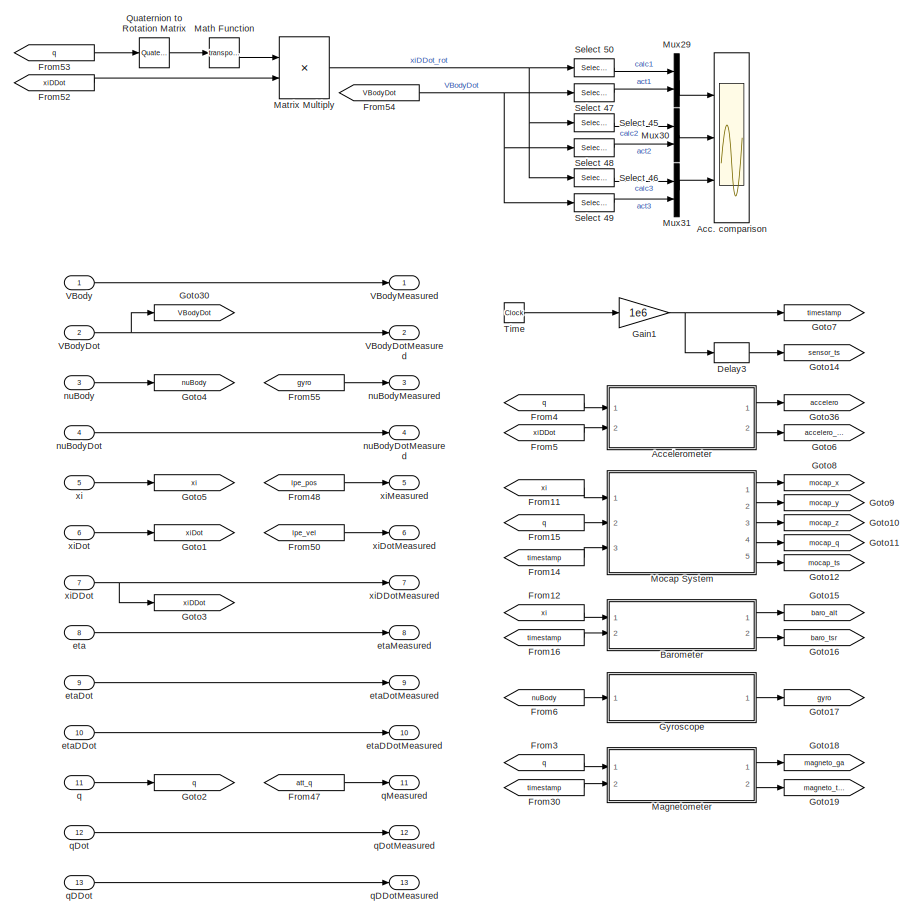
[diagram: Sensor Model - part 1/4, top left region]
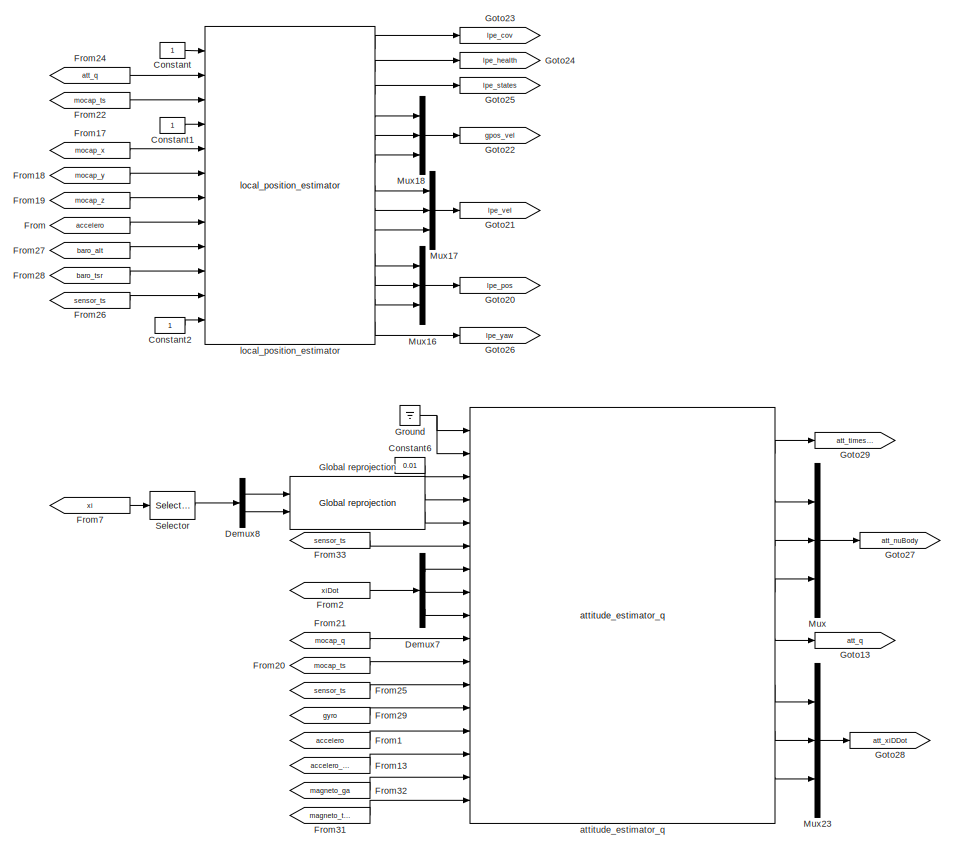
[diagram: Sensor Model - part 2/4, middle right region]
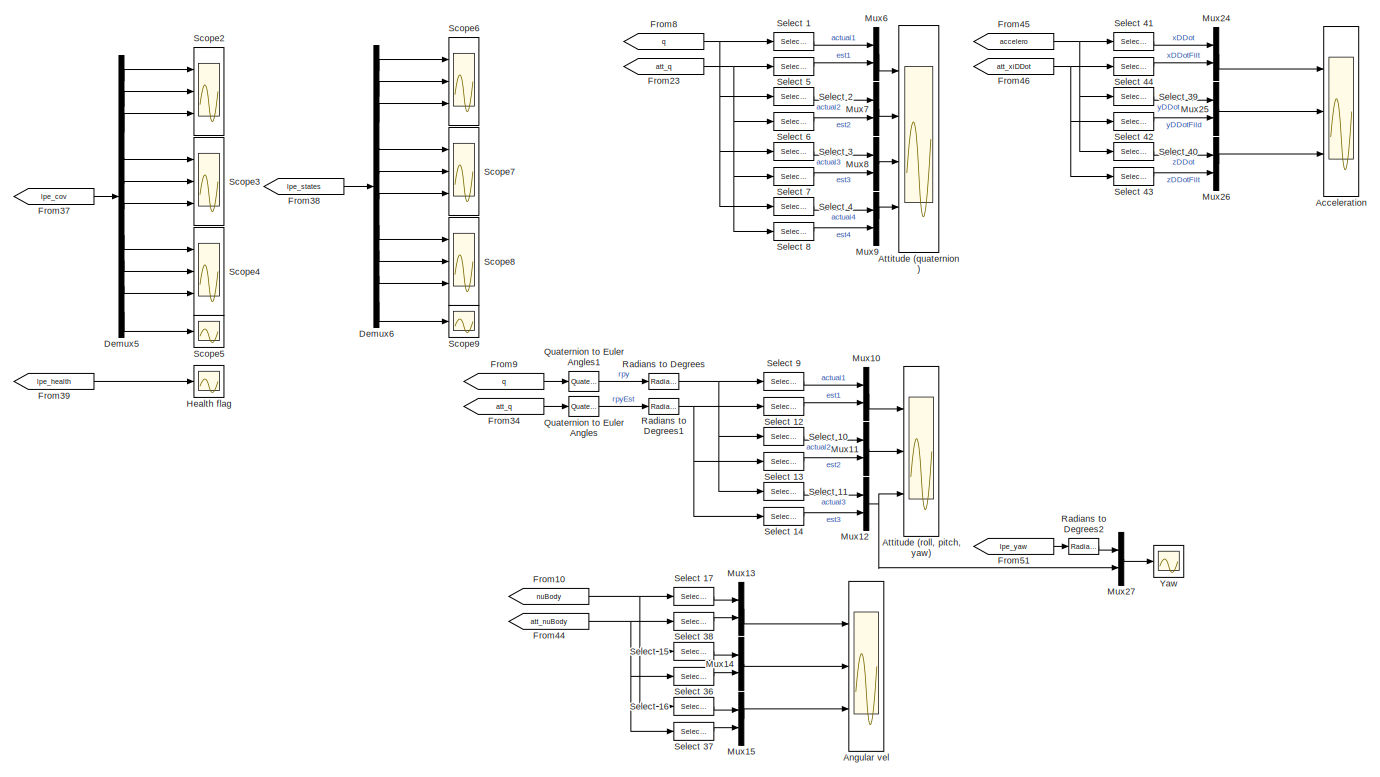
[diagram: Sensor Model - part 3/4, bottom center region]
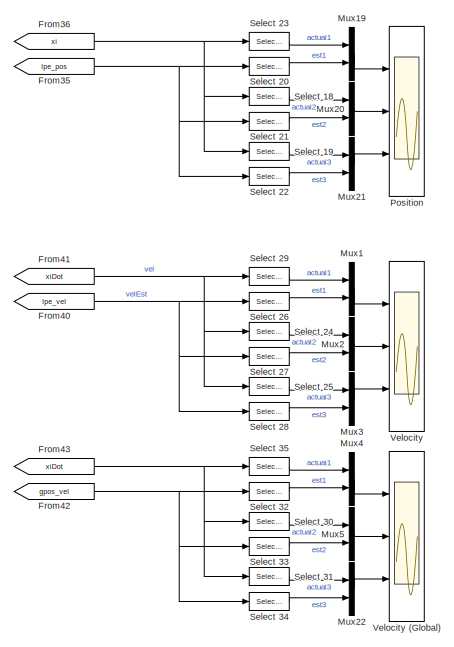
[diagram: Sensor Model - part 4/4, bottom left region]
BLOCK [SubSystem] Sensor Model
  Ports = [13, 13]
  RequestExecContextInheritance = off
BLOCK [Scope] Sensor Model/Acc. comparison
  Floating = off
  NumInputPorts = 3
  Ports = [3]
  ScopeSpecificationString = Simulink.scopes.TimeScopeBlockCfg('CurrentConfiguration', extmgr.ConfigurationSet(extmgr.Configuration('Core','General UI',true),extmgr.Configuration('Core','Source UI',true),extmgr.Configuration('Sources','WiredSimulink',true,'DataLoggingVariableName','ScopeData3'),extmgr.Configuration('Visuals','Time Domain',true,'PlotType','Stairs','SerializedDisplays',{struct('MinYLimReal','-28.42765','MaxYLim...<+2709ch>
BLOCK [Scope] Sensor Model/Acceleration
  Floating = off
  NumInputPorts = 3
  Ports = [3]
  ScopeSpecificationString = Simulink.scopes.TimeScopeBlockCfg('CurrentConfiguration', extmgr.ConfigurationSet(extmgr.Configuration('Core','General UI',true),extmgr.Configuration('Core','Source UI',true),extmgr.Configuration('Sources','WiredSimulink',true,'DataLoggingVariableName','ScopeData1'),extmgr.Configuration('Visuals','Time Domain',true,'SerializedDisplays',{struct('MinYLimReal','-0.13218','MaxYLimReal','0.8131','YLabe...<+2749ch>
BLOCK [SubSystem] Sensor Model/Accelerometer
  Ports = [2, 2]
  RequestExecContextInheritance = off
BLOCK [Display] Sensor Model/Accelerometer/Acceleration (body frame)
  Decimation = 1
  Ports = [1]
BLOCK [Display] Sensor Model/Accelerometer/Accelerometer (world frame)
  Decimation = 1
  Ports = [1]
BLOCK [Constant] Sensor Model/Accelerometer/Constant5
  Value = 0
BLOCK [Delay] Sensor Model/Accelerometer/Delay3
  Commented = on
  DelayLength = 1
  InitialConditionSource = Input port
  InputPortMap = u0,p4
  Ports = [2, 1]
  SampleTime = 1/400
BLOCK [Delay] Sensor Model/Accelerometer/Delay4
  Commented = on
  DelayLength = 1
  InitialConditionSource = Input port
  InputPortMap = u0,p4
  Ports = [2, 1]
  SampleTime = 1/400
BLOCK [Delay] Sensor Model/Accelerometer/Delay5
  Commented = on
  DelayLength = 1
  InitialConditionSource = Input port
  InputPortMap = u0,p4
  Ports = [2, 1]
  SampleTime = 1/400
BLOCK [Demux] Sensor Model/Accelerometer/Demux1
  Outputs = 3
  Ports = [1, 3]
BLOCK [Constant] Sensor Model/Accelerometer/Gravity
  Value = [0;0;-9.81]
BLOCK [Math] Sensor Model/Accelerometer/Math Function
  Operator = transpose
  Ports = [1, 1]
  SignedPower = on
BLOCK [Product] Sensor Model/Accelerometer/Matrix Multiply
  Multiplication = Matrix(*)
  Ports = [2, 1]
BLOCK [Mux] Sensor Model/Accelerometer/Mux14
  DisplayOption = bar
  Inputs = 3
  Ports = [3, 1]
BLOCK [Reference] Sensor Model/Accelerometer/Quaternion to Rotation Matrix  REF=QuaternionLibrary/Quaternion
to Rotation Matrix
  Ports = [1, 1]
  SourceBlock = QuaternionLibrary/Quaternion\nto Rotation Matrix
BLOCK [Display] Sensor Model/Accelerometer/Raw Acceleration
  Decimation = 1
  Ports = [1]
BLOCK [Sum] Sensor Model/Accelerometer/Sum
  Inputs = |++
  Ports = [2, 1]
BLOCK [Sum] Sensor Model/Accelerometer/Sum1
  Inputs = |++
  Ports = [2, 1]
BLOCK [Sum] Sensor Model/Accelerometer/Sum2
  Inputs = |++
  Ports = [2, 1]
BLOCK [Sum] Sensor Model/Accelerometer/Sum3
  Inputs = |++
  Ports = [2, 1]
BLOCK [UnitDelay] Sensor Model/Accelerometer/Unit Delay
  HasFrameUpgradeWarning = on
  SampleTime = 1/400
BLOCK [UnitDelay] Sensor Model/Accelerometer/Unit Delay1
  HasFrameUpgradeWarning = on
  SampleTime = 1/400
BLOCK [UnitDelay] Sensor Model/Accelerometer/Unit Delay2
  HasFrameUpgradeWarning = on
  InitialCondition = -9.81
  SampleTime = 1/400
BLOCK [RandomNumber] Sensor Model/Accelerometer/acc_x noise
  SampleTime = 1/400
  Variance = 0.012^2
BLOCK [RandomNumber] Sensor Model/Accelerometer/acc_y noise
  SampleTime = 1/400
  Variance = 0.012^2
BLOCK [RandomNumber] Sensor Model/Accelerometer/acc_z noise
  SampleTime = 1/400
  Variance = 0.02^2
BLOCK [Outport] Sensor Model/Accelerometer/accelerometer_m_s2
  SampleTime = 1/400
  Unit = m/s^2
  VectorParamsAs1DForOutWhenUnconnected = off
BLOCK [Inport] Sensor Model/Accelerometer/q
BLOCK [Outport] Sensor Model/Accelerometer/timestamp_relative
  Port = 2
  SampleTime = 1/400
  Unit = µs
  VectorParamsAs1DForOutWhenUnconnected = off
BLOCK [Inport] Sensor Model/Accelerometer/xiDDot
  Port = 2
  Unit = m/s^2
BLOCK [Scope] Sensor Model/Angular vel
  Floating = off
  NumInputPorts = 3
  Ports = [3]
  ScopeSpecificationString = Simulink.scopes.TimeScopeBlockCfg('CurrentConfiguration', extmgr.ConfigurationSet(extmgr.Configuration('Core','General UI',true),extmgr.Configuration('Core','Source UI',true),extmgr.Configuration('Sources','WiredSimulink',true,'DataLoggingVariableName','ScopeData4'),extmgr.Configuration('Visuals','Time Domain',true,'SerializedDisplays',{struct('MinYLimReal','-0.11356','MaxYLimReal','0.11661','YLab...<+2780ch>
BLOCK [Scope] Sensor Model/Attitude (quaternion)
  Floating = off
  NumInputPorts = 4
  Ports = [4]
  ScopeSpecificationString = Simulink.scopes.TimeScopeBlockCfg('CurrentConfiguration', extmgr.ConfigurationSet(extmgr.Configuration('Core','General UI',true),extmgr.Configuration('Core','Source UI',true),extmgr.Configuration('Sources','WiredSimulink',true,'DataLoggingVariableName','ScopeData2'),extmgr.Configuration('Visuals','Time Domain',true,'SerializedDisplays',{struct('MinYLimReal','0.99454','MaxYLimReal','1.00061','YLabe...<+3447ch>
BLOCK [Scope] Sensor Model/Attitude (roll, pitch, yaw)
  Floating = off
  NumInputPorts = 3
  Ports = [3]
  ScopeSpecificationString = Simulink.scopes.TimeScopeBlockCfg('CurrentConfiguration', extmgr.ConfigurationSet(extmgr.Configuration('Core','General UI',true),extmgr.Configuration('Core','Source UI',true),extmgr.Configuration('Sources','WiredSimulink',true,'DataLoggingVariableName','ScopeData3'),extmgr.Configuration('Visuals','Time Domain',true,'PlotType','Stairs','SerializedDisplays',{struct('MinYLimReal','-1.72987','MaxYLimR...<+2714ch>
BLOCK [SubSystem] Sensor Model/Barometer
  Ports = [2, 2]
  RequestExecContextInheritance = off
BLOCK [Sum] Sensor Model/Barometer/Add
  IconShape = rectangular
  Inputs = +-
  Ports = [2, 1]
BLOCK [Scope] Sensor Model/Barometer/Scope
  Floating = off
  NumInputPorts = 1
  Ports = [1]
  ScopeSpecificationString = Simulink.scopes.TimeScopeBlockCfg('CurrentConfiguration', extmgr.ConfigurationSet(extmgr.Configuration('Core','General UI',true),extmgr.Configuration('Core','Source UI',true),extmgr.Configuration('Sources','WiredSimulink',true,'DataLoggingVariableName','ScopeData6'),extmgr.Configuration('Visuals','Time Domain',true,'SerializedDisplays',{struct('MinYLimReal','-11250.00000','MaxYLimReal','1250.00000...<+1434ch>
BLOCK [Selector] Sensor Model/Barometer/Select altitude
  IndexOptions = Index vector (dialog)
  Indices = 3
  InputPortWidth = 3
  OutputSizes = 1
  Ports = [1, 1]
BLOCK [Sum] Sensor Model/Barometer/Sum
  Inputs = |++
  Ports = [2, 1]
BLOCK [RateTransition] Sensor Model/Barometer/To 400 Hz
  Deterministic = off
  OutPortSampleTime = 1/250
BLOCK [RateTransition] Sensor Model/Barometer/To 400 Hz1
  OutPortSampleTime = 1/400
BLOCK [RateTransition] Sensor Model/Barometer/To 50 Hz
  OutPortSampleTime = 1/50
BLOCK [RateTransition] Sensor Model/Barometer/To 50 Hz1
  OutPortSampleTime = 1/50
BLOCK [Outport] Sensor Model/Barometer/baro_alt_meter
  SampleTime = 1/400
  Unit = m
  VectorParamsAs1DForOutWhenUnconnected = off
BLOCK [RandomNumber] Sensor Model/Barometer/barro noise
  SampleTime = 0.01
  Variance = 1/3^2
BLOCK [Inport] Sensor Model/Barometer/timestamp
  Port = 2
  Unit = µs
BLOCK [Outport] Sensor Model/Barometer/timestamp_relative
  Port = 2
  Unit = µs
  VectorParamsAs1DForOutWhenUnconnected = off
BLOCK [Inport] Sensor Model/Barometer/xi
  Unit = m
BLOCK [Constant] Sensor Model/Constant
BLOCK [Constant] Sensor Model/Constant1
BLOCK [Constant] Sensor Model/Constant2
BLOCK [Constant] Sensor Model/Constant6
  Value = 0.01
BLOCK [Delay] Sensor Model/Delay3
  DelayLength = 1
  InputPortMap = u0
  Ports = [1, 1]
  SampleTime = 1/400
BLOCK [Demux] Sensor Model/Demux5
  Outputs = 10
  Ports = [1, 10]
BLOCK [Demux] Sensor Model/Demux6
  Outputs = 10
  Ports = [1, 10]
BLOCK [Demux] Sensor Model/Demux7
  Outputs = 3
  Ports = [1, 3]
BLOCK [Demux] Sensor Model/Demux8
  Outputs = 2
  Ports = [1, 2]
BLOCK [From] Sensor Model/From
  GotoTag = accelero
BLOCK [From] Sensor Model/From1
  GotoTag = accelero
BLOCK [From] Sensor Model/From10
  GotoTag = nuBody
BLOCK [From] Sensor Model/From11
  GotoTag = xi
BLOCK [From] Sensor Model/From12
  GotoTag = xi
BLOCK [From] Sensor Model/From13
  GotoTag = accelero_tsr
BLOCK [From] Sensor Model/From14
  GotoTag = timestamp
BLOCK [From] Sensor Model/From15
  GotoTag = q
BLOCK [From] Sensor Model/From16
  GotoTag = timestamp
BLOCK [From] Sensor Model/From17
  GotoTag = mocap_x
BLOCK [From] Sensor Model/From18
  GotoTag = mocap_y
BLOCK [From] Sensor Model/From19
  GotoTag = mocap_z
BLOCK [From] Sensor Model/From2
  GotoTag = xiDot
BLOCK [From] Sensor Model/From20
  GotoTag = mocap_ts
BLOCK [From] Sensor Model/From21
  GotoTag = mocap_q
BLOCK [From] Sensor Model/From22
  GotoTag = mocap_ts
BLOCK [From] Sensor Model/From23
  GotoTag = att_q
BLOCK [From] Sensor Model/From24
  GotoTag = att_q
BLOCK [From] Sensor Model/From25
  GotoTag = sensor_ts
BLOCK [From] Sensor Model/From26
  GotoTag = sensor_ts
BLOCK [From] Sensor Model/From27
  GotoTag = baro_alt
BLOCK [From] Sensor Model/From28
  GotoTag = baro_tsr
BLOCK [From] Sensor Model/From29
  GotoTag = gyro
BLOCK [From] Sensor Model/From3
  GotoTag = q
BLOCK [From] Sensor Model/From30
  GotoTag = timestamp
BLOCK [From] Sensor Model/From31
  GotoTag = magneto_tsr
BLOCK [From] Sensor Model/From32
  GotoTag = magneto_ga
BLOCK [From] Sensor Model/From33
  GotoTag = sensor_ts
BLOCK [From] Sensor Model/From34
  GotoTag = att_q
BLOCK [From] Sensor Model/From35
  GotoTag = lpe_pos
BLOCK [From] Sensor Model/From36
  GotoTag = xi
BLOCK [From] Sensor Model/From37
  GotoTag = lpe_cov
BLOCK [From] Sensor Model/From38
  GotoTag = lpe_states
BLOCK [From] Sensor Model/From39
  GotoTag = lpe_health
BLOCK [From] Sensor Model/From4
  GotoTag = q
BLOCK [From] Sensor Model/From40
  GotoTag = lpe_vel
BLOCK [From] Sensor Model/From41
  GotoTag = xiDot
BLOCK [From] Sensor Model/From42
  GotoTag = gpos_vel
BLOCK [From] Sensor Model/From43
  GotoTag = xiDot
BLOCK [From] Sensor Model/From44
  GotoTag = att_nuBody
BLOCK [From] Sensor Model/From45
  GotoTag = accelero
BLOCK [From] Sensor Model/From46
  GotoTag = att_xiDDot
BLOCK [From] Sensor Model/From47
  GotoTag = att_q
BLOCK [From] Sensor Model/From48
  GotoTag = lpe_pos
BLOCK [From] Sensor Model/From5
  GotoTag = xiDDot
BLOCK [From] Sensor Model/From50
  GotoTag = lpe_vel
BLOCK [From] Sensor Model/From51
  GotoTag = lpe_yaw
BLOCK [From] Sensor Model/From52
  GotoTag = xiDDot
BLOCK [From] Sensor Model/From53
  GotoTag = q
BLOCK [From] Sensor Model/From54
  GotoTag = VBodyDot
BLOCK [From] Sensor Model/From55
  GotoTag = gyro
BLOCK [From] Sensor Model/From6
  GotoTag = nuBody
BLOCK [From] Sensor Model/From7
  GotoTag = xi
BLOCK [From] Sensor Model/From8
  GotoTag = q
BLOCK [From] Sensor Model/From9
  GotoTag = q
BLOCK [Gain] Sensor Model/Gain1
  Gain = 1e6
BLOCK [Reference] Sensor Model/Global reprojection  REF=Px4Library/Global reprojection
  Ports = [2, 2]
  SourceBlock = Px4Library/Global reprojection
BLOCK [Goto] Sensor Model/Goto1
  GotoTag = xiDot
BLOCK [Goto] Sensor Model/Goto10
  GotoTag = mocap_z
BLOCK [Goto] Sensor Model/Goto11
  GotoTag = mocap_q
BLOCK [Goto] Sensor Model/Goto12
  GotoTag = mocap_ts
BLOCK [Goto] Sensor Model/Goto13
  GotoTag = att_q
BLOCK [Goto] Sensor Model/Goto14
  GotoTag = sensor_ts
BLOCK [Goto] Sensor Model/Goto15
  GotoTag = baro_alt
BLOCK [Goto] Sensor Model/Goto16
  GotoTag = baro_tsr
BLOCK [Goto] Sensor Model/Goto17
  GotoTag = gyro
BLOCK [Goto] Sensor Model/Goto18
  GotoTag = magneto_ga
BLOCK [Goto] Sensor Model/Goto19
  GotoTag = magneto_tsr
BLOCK [Goto] Sensor Model/Goto2
  GotoTag = q
BLOCK [Goto] Sensor Model/Goto20
  GotoTag = lpe_pos
BLOCK [Goto] Sensor Model/Goto21
  GotoTag = lpe_vel
BLOCK [Goto] Sensor Model/Goto22
  GotoTag = gpos_vel
BLOCK [Goto] Sensor Model/Goto23
  GotoTag = lpe_cov
BLOCK [Goto] Sensor Model/Goto24
  GotoTag = lpe_health
BLOCK [Goto] Sensor Model/Goto25
  GotoTag = lpe_states
BLOCK [Goto] Sensor Model/Goto26
  GotoTag = lpe_yaw
BLOCK [Goto] Sensor Model/Goto27
  GotoTag = att_nuBody
BLOCK [Goto] Sensor Model/Goto28
  GotoTag = att_xiDDot
BLOCK [Goto] Sensor Model/Goto29
  GotoTag = att_timestamp
BLOCK [Goto] Sensor Model/Goto3
  GotoTag = xiDDot
BLOCK [Goto] Sensor Model/Goto30
  GotoTag = VBodyDot
BLOCK [Goto] Sensor Model/Goto36
  GotoTag = accelero
BLOCK [Goto] Sensor Model/Goto4
  GotoTag = nuBody
BLOCK [Goto] Sensor Model/Goto5
  GotoTag = xi
BLOCK [Goto] Sensor Model/Goto6
  GotoTag = accelero_tsr
BLOCK [Goto] Sensor Model/Goto7
  GotoTag = timestamp
BLOCK [Goto] Sensor Model/Goto8
  GotoTag = mocap_x
BLOCK [Goto] Sensor Model/Goto9
  GotoTag = mocap_y
BLOCK [Ground] Sensor Model/Ground
BLOCK [SubSystem] Sensor Model/Gyroscope
  Ports = [1, 1]
  RequestExecContextInheritance = off
BLOCK [Constant] Sensor Model/Gyroscope/Bias
  Commented = on
  Value = [0.0001;0.0001;0.0001]
BLOCK [Delay] Sensor Model/Gyroscope/Delay1
  DelayLength = 1
  InitialConditionSource = Input port
  InputPortMap = u0,p4
  Ports = [2, 1]
  SampleTime = 1/400
BLOCK [Delay] Sensor Model/Gyroscope/Delay2
  DelayLength = 1
  InitialConditionSource = Input port
  InputPortMap = u0,p4
  Ports = [2, 1]
  SampleTime = 1/400
BLOCK [Delay] Sensor Model/Gyroscope/Delay4
  DelayLength = 1
  InitialConditionSource = Input port
  InputPortMap = u0,p4
  Ports = [2, 1]
  SampleTime = 1/400
BLOCK [Demux] Sensor Model/Gyroscope/Demux
  Outputs = 3
  Ports = [1, 3]
BLOCK [Gain] Sensor Model/Gyroscope/Gain
BLOCK [Mux] Sensor Model/Gyroscope/Mux
  DisplayOption = bar
  Inputs = 3
  Ports = [3, 1]
BLOCK [Sum] Sensor Model/Gyroscope/Sum
  Inputs = |++
  Ports = [2, 1]
BLOCK [Sum] Sensor Model/Gyroscope/Sum1
  Inputs = |++
  Ports = [2, 1]
BLOCK [Sum] Sensor Model/Gyroscope/Sum2
  Inputs = ++|
  Ports = [2, 1]
BLOCK [Sum] Sensor Model/Gyroscope/Sum3
  Inputs = |++
  Ports = [2, 1]
BLOCK [Outport] Sensor Model/Gyroscope/gyro_rad
  SampleTime = 1/400
  Unit = rad/s
  VectorParamsAs1DForOutWhenUnconnected = off
BLOCK [RandomNumber] Sensor Model/Gyroscope/gyro_x noise
  SampleTime = 1/400
  Variance = (0.1*pi/180)^2
BLOCK [RandomNumber] Sensor Model/Gyroscope/gyro_y noise
  SampleTime = 1/400
  Variance = (0.1*pi/180)^2
BLOCK [RandomNumber] Sensor Model/Gyroscope/gyro_z noise
  SampleTime = 1/400
  Variance = (0.1*pi/180)^2
BLOCK [Inport] Sensor Model/Gyroscope/nuBody
  Unit = rad/s
BLOCK [Scope] Sensor Model/Health flag
  Floating = off
  NumInputPorts = 1
  Ports = [1]
  ScopeSpecificationString = Simulink.scopes.TimeScopeBlockCfg('CurrentConfiguration', extmgr.ConfigurationSet(extmgr.Configuration('Core','General UI',true),extmgr.Configuration('Core','Source UI',true),extmgr.Configuration('Sources','WiredSimulink',true,'DataLoggingVariableName','ScopeData9'),extmgr.Configuration('Visuals','Time Domain',true,'SerializedDisplays',{struct('MinYLimReal','-0.49748','MaxYLimReal','65.88083','YLa...<+1455ch>
BLOCK [SubSystem] Sensor Model/Magnetometer
  Ports = [2, 2]
  RequestExecContextInheritance = off
BLOCK [Sum] Sensor Model/Magnetometer/Add
  IconShape = rectangular
  Inputs = +-
  Ports = [2, 1]
BLOCK [Delay] Sensor Model/Magnetometer/Delay1
  DelayLength = 1
  InitialConditionSource = Input port
  InputPortMap = u0,p4
  Ports = [2, 1]
  SampleTime = 1/100
BLOCK [Delay] Sensor Model/Magnetometer/Delay2
  DelayLength = 1
  InitialConditionSource = Input port
  InputPortMap = u0,p4
  Ports = [2, 1]
  SampleTime = 1/100
BLOCK [Delay] Sensor Model/Magnetometer/Delay3
  DelayLength = 1
  InitialConditionSource = Input port
  InputPortMap = u0,p4
  Ports = [2, 1]
  SampleTime = 1/100
BLOCK [Demux] Sensor Model/Magnetometer/Demux1
  Outputs = 3
  Ports = [1, 3]
BLOCK [Math] Sensor Model/Magnetometer/Math Function1
  Operator = transpose
  Ports = [1, 1]
  SignedPower = on
BLOCK [Product] Sensor Model/Magnetometer/Matrix Multiply1
  Multiplication = Matrix(*)
  Ports = [2, 1]
BLOCK [Mux] Sensor Model/Magnetometer/Mux14
  DisplayOption = bar
  Inputs = 3
  Ports = [3, 1]
BLOCK [Constant] Sensor Model/Magnetometer/North
  Value = [1;0;0]
BLOCK [Reference] Sensor Model/Magnetometer/Quaternion to Rotation Matrix1  REF=QuaternionLibrary/Quaternion
to Rotation Matrix
  Ports = [1, 1]
  SourceBlock = QuaternionLibrary/Quaternion\nto Rotation Matrix
BLOCK [RateTransition] Sensor Model/Magnetometer/Rate Transition1
  Deterministic = off
  OutPortSampleTime = 1/100
BLOCK [Scope] Sensor Model/Magnetometer/Scope
  Floating = off
  NumInputPorts = 1
  Ports = [1]
  ScopeSpecificationString = Simulink.scopes.TimeScopeBlockCfg('CurrentConfiguration', extmgr.ConfigurationSet(extmgr.Configuration('Core','General UI',true),extmgr.Configuration('Core','Source UI',true),extmgr.Configuration('Sources','WiredSimulink',true,'DataLoggingVariableName','ScopeData5'),extmgr.Configuration('Visuals','Time Domain',true,'SerializedDisplays',{struct('MinYLimReal','-11250.00000','MaxYLimReal','1250.00000...<+1434ch>
BLOCK [Scope] Sensor Model/Magnetometer/Scope1
  Floating = off
  NumInputPorts = 1
  Ports = [1]
  ScopeSpecificationString = Simulink.scopes.TimeScopeBlockCfg('CurrentConfiguration', extmgr.ConfigurationSet(extmgr.Configuration('Core','General UI',true),extmgr.Configuration('Core','Source UI',true),extmgr.Configuration('Sources','WiredSimulink',true,'DataLoggingVariableName','ScopeData1'),extmgr.Configuration('Visuals','Time Domain',true,'SerializedDisplays',{struct('MinYLimReal','-1.00061','MaxYLimReal','1.22486','YLab...<+1493ch>
BLOCK [Sum] Sensor Model/Magnetometer/Sum
  Inputs = |++
  Ports = [2, 1]
BLOCK [Sum] Sensor Model/Magnetometer/Sum2
  Inputs = |++
  Ports = [2, 1]
BLOCK [Sum] Sensor Model/Magnetometer/Sum3
  Inputs = |++
  Ports = [2, 1]
BLOCK [RateTransition] Sensor Model/Magnetometer/To 100 Hz
  OutPortSampleTime = 1/100
BLOCK [RateTransition] Sensor Model/Magnetometer/To 400 Hz
  Deterministic = off
  OutPortSampleTime = 1/250
BLOCK [RateTransition] Sensor Model/Magnetometer/To 400 Hz1
  OutPortSampleTime = 1/400
BLOCK [RandomNumber] Sensor Model/Magnetometer/mag_x noise
  SampleTime = 1/400
  Variance = 0.001^2
BLOCK [RandomNumber] Sensor Model/Magnetometer/mag_y noise
  SampleTime = 1/400
  Variance = 0.001^2
BLOCK [RandomNumber] Sensor Model/Magnetometer/mag_z noise
  SampleTime = 1/400
  Variance = 0.001^2
BLOCK [Outport] Sensor Model/Magnetometer/magnetometer_ga
  SampleTime = 1/250
  Unit = G
  VectorParamsAs1DForOutWhenUnconnected = off
BLOCK [Inport] Sensor Model/Magnetometer/q
BLOCK [Inport] Sensor Model/Magnetometer/timestamp
  Port = 2
BLOCK [Outport] Sensor Model/Magnetometer/timestamp_relative
  Port = 2
  SampleTime = 1/250
  Unit = µs
  VectorParamsAs1DForOutWhenUnconnected = off
BLOCK [Math] Sensor Model/Math Function
  Operator = transpose
  Ports = [1, 1]
  SignedPower = on
BLOCK [Product] Sensor Model/Matrix Multiply
  Multiplication = Matrix(*)
  Ports = [2, 1]
BLOCK [SubSystem] Sensor Model/Mocap System
  Ports = [3, 5]
  RequestExecContextInheritance = off
BLOCK [Delay] Sensor Model/Mocap System/Delay
  DelayLength = 10
  InputPortMap = u0
  Ports = [1, 1]
  SampleTime = 1/100
BLOCK [Delay] Sensor Model/Mocap System/Delay1
  DelayLength = 10
  InputPortMap = u0
  Ports = [1, 1]
  SampleTime = 1/100
BLOCK [Delay] Sensor Model/Mocap System/Delay2
  DelayLength = 10
  InitialConditionSource = Input port
  InputPortMap = u0,p4
  Ports = [2, 1]
  SampleTime = 1/100
BLOCK [Delay] Sensor Model/Mocap System/Delay3
  DelayLength = 10
  InitialConditionSource = Input port
  InputPortMap = u0,p4
  Ports = [2, 1]
  SampleTime = 1/100
BLOCK [Delay] Sensor Model/Mocap System/Delay4
  DelayLength = 10
  InitialConditionSource = Input port
  InputPortMap = u0,p4
  Ports = [2, 1]
  SampleTime = 1/100
BLOCK [Demux] Sensor Model/Mocap System/Demux
  Outputs = 3
  Ports = [1, 3]
BLOCK [Demux] Sensor Model/Mocap System/Demux1
  Outputs = 3
  Ports = [1, 3]
BLOCK [Mux] Sensor Model/Mocap System/Mux14
  DisplayOption = bar
  Inputs = 3
  Ports = [3, 1]
BLOCK [Sum] Sensor Model/Mocap System/Sum
  Inputs = |++
  Ports = [2, 1]
BLOCK [Sum] Sensor Model/Mocap System/Sum1
  Inputs = |++
  Ports = [2, 1]
BLOCK [Sum] Sensor Model/Mocap System/Sum2
  Inputs = |++
  Ports = [2, 1]
BLOCK [Outport] Sensor Model/Mocap System/mocap_q
  Port = 4
  VectorParamsAs1DForOutWhenUnconnected = off
BLOCK [Outport] Sensor Model/Mocap System/mocap_timestamp
  Port = 5
  VectorParamsAs1DForOutWhenUnconnected = off
BLOCK [Outport] Sensor Model/Mocap System/mocap_x
  VectorParamsAs1DForOutWhenUnconnected = off
BLOCK [Outport] Sensor Model/Mocap System/mocap_y
  Port = 2
  VectorParamsAs1DForOutWhenUnconnected = off
BLOCK [Outport] Sensor Model/Mocap System/mocap_z
  Port = 3
  VectorParamsAs1DForOutWhenUnconnected = off
BLOCK [Inport] Sensor Model/Mocap System/q
  Port = 2
BLOCK [Inport] Sensor Model/Mocap System/timestamp
  Port = 3
BLOCK [RandomNumber] Sensor Model/Mocap System/vic_p x
  SampleTime = 0.01
  Variance = 0.001^2
BLOCK [RandomNumber] Sensor Model/Mocap System/vic_p y
  SampleTime = 0.01
  Variance = 0.001^2
BLOCK [RandomNumber] Sensor Model/Mocap System/vic_p z
  SampleTime = 0.01
  Variance = 0.001^2
BLOCK [Inport] Sensor Model/Mocap System/xi
BLOCK [Mux] Sensor Model/Mux
  DisplayOption = bar
  Inputs = 3
  Ports = [3, 1]
BLOCK [Mux] Sensor Model/Mux1
  DisplayOption = bar
  Inputs = 2
  Ports = [2, 1]
BLOCK [Mux] Sensor Model/Mux10
  DisplayOption = bar
  Inputs = 2
  Ports = [2, 1]
BLOCK [Mux] Sensor Model/Mux11
  DisplayOption = bar
  Inputs = 2
  Ports = [2, 1]
BLOCK [Mux] Sensor Model/Mux12
  DisplayOption = bar
  Inputs = 2
  Ports = [2, 1]
BLOCK [Mux] Sensor Model/Mux13
  DisplayOption = bar
  Inputs = 2
  Ports = [2, 1]
BLOCK [Mux] Sensor Model/Mux14
  DisplayOption = bar
  Inputs = 2
  Ports = [2, 1]
BLOCK [Mux] Sensor Model/Mux15
  DisplayOption = bar
  Inputs = 2
  Ports = [2, 1]
BLOCK [Mux] Sensor Model/Mux16
  DisplayOption = bar
  Inputs = 3
  Ports = [3, 1]
BLOCK [Mux] Sensor Model/Mux17
  DisplayOption = bar
  Inputs = 3
  Ports = [3, 1]
BLOCK [Mux] Sensor Model/Mux18
  DisplayOption = bar
  Inputs = 3
  Ports = [3, 1]
BLOCK [Mux] Sensor Model/Mux19
  DisplayOption = bar
  Inputs = 2
  Ports = [2, 1]
BLOCK [Mux] Sensor Model/Mux2
  DisplayOption = bar
  Inputs = 2
  Ports = [2, 1]
BLOCK [Mux] Sensor Model/Mux20
  DisplayOption = bar
  Inputs = 2
  Ports = [2, 1]
BLOCK [Mux] Sensor Model/Mux21
  DisplayOption = bar
  Inputs = 2
  Ports = [2, 1]
BLOCK [Mux] Sensor Model/Mux22
  DisplayOption = bar
  Inputs = 2
  Ports = [2, 1]
BLOCK [Mux] Sensor Model/Mux23
  DisplayOption = bar
  Inputs = 3
  Ports = [3, 1]
BLOCK [Mux] Sensor Model/Mux24
  DisplayOption = bar
  Inputs = 2
  Ports = [2, 1]
BLOCK [Mux] Sensor Model/Mux25
  DisplayOption = bar
  Inputs = 2
  Ports = [2, 1]
BLOCK [Mux] Sensor Model/Mux26
  DisplayOption = bar
  Inputs = 2
  Ports = [2, 1]
BLOCK [Mux] Sensor Model/Mux27
  DisplayOption = bar
  Inputs = 2
  Ports = [2, 1]
BLOCK [Mux] Sensor Model/Mux29
  DisplayOption = bar
  Inputs = 2
  Ports = [2, 1]
BLOCK [Mux] Sensor Model/Mux3
  DisplayOption = bar
  Inputs = 2
  Ports = [2, 1]
BLOCK [Mux] Sensor Model/Mux30
  DisplayOption = bar
  Inputs = 2
  Ports = [2, 1]
BLOCK [Mux] Sensor Model/Mux31
  DisplayOption = bar
  Inputs = 2
  Ports = [2, 1]
BLOCK [Mux] Sensor Model/Mux4
  DisplayOption = bar
  Inputs = 2
  Ports = [2, 1]
BLOCK [Mux] Sensor Model/Mux5
  DisplayOption = bar
  Inputs = 2
  Ports = [2, 1]
BLOCK [Mux] Sensor Model/Mux6
  DisplayOption = bar
  Inputs = 2
  Ports = [2, 1]
BLOCK [Mux] Sensor Model/Mux7
  DisplayOption = bar
  Inputs = 2
  Ports = [2, 1]
BLOCK [Mux] Sensor Model/Mux8
  DisplayOption = bar
  Inputs = 2
  Ports = [2, 1]
BLOCK [Mux] Sensor Model/Mux9
  DisplayOption = bar
  Inputs = 2
  Ports = [2, 1]
BLOCK [Scope] Sensor Model/Position
  Floating = off
  NumInputPorts = 3
  Ports = [3]
  ScopeSpecificationString = Simulink.scopes.TimeScopeBlockCfg('CurrentConfiguration', extmgr.ConfigurationSet(extmgr.Configuration('Core','General UI',true),extmgr.Configuration('Core','Source UI',true),extmgr.Configuration('Sources','WiredSimulink',true,'DataLoggingVariableName','ScopeData1'),extmgr.Configuration('Visuals','Time Domain',true,'SerializedDisplays',{struct('MinYLimReal','-1.24791','MaxYLimReal','0.24036','YLab...<+2761ch>
BLOCK [Reference] Sensor Model/Quaternion to Euler Angles  REF=QuaternionLibrary/Quaternion
to Euler Angles
  Ports = [1, 1]
  SourceBlock = QuaternionLibrary/Quaternion\nto Euler Angles
BLOCK [Reference] Sensor Model/Quaternion to Euler Angles1  REF=QuaternionLibrary/Quaternion
to Euler Angles
  Ports = [1, 1]
  SourceBlock = QuaternionLibrary/Quaternion\nto Euler Angles
BLOCK [Reference] Sensor Model/Quaternion to Rotation Matrix  REF=QuaternionLibrary/Quaternion
to Rotation Matrix
  Ports = [1, 1]
  SourceBlock = QuaternionLibrary/Quaternion\nto Rotation Matrix
BLOCK [Reference] Sensor Model/Radians to Degrees  REF=simulink_extras/Transformations/Radians
to Degrees
  Ports = [1, 1]
  SourceBlock = simulink_extras/Transformations/Radians\nto Degrees
  SourceProductBaseCode = SL
  SourceType = RadiansToDegrees
BLOCK [Reference] Sensor Model/Radians to Degrees1  REF=simulink_extras/Transformations/Radians
to Degrees
  Ports = [1, 1]
  SourceBlock = simulink_extras/Transformations/Radians\nto Degrees
  SourceProductBaseCode = SL
  SourceType = RadiansToDegrees
BLOCK [Reference] Sensor Model/Radians to Degrees2  REF=simulink_extras/Transformations/Radians
to Degrees
  Ports = [1, 1]
  SourceBlock = simulink_extras/Transformations/Radians\nto Degrees
  SourceProductBaseCode = SL
  SourceType = RadiansToDegrees
BLOCK [Scope] Sensor Model/Scope2
  Floating = off
  NumInputPorts = 3
  Ports = [3]
  ScopeSpecificationString = Simulink.scopes.TimeScopeBlockCfg('CurrentConfiguration', extmgr.ConfigurationSet(extmgr.Configuration('Core','General UI',true),extmgr.Configuration('Core','Source UI',true),extmgr.Configuration('Sources','WiredSimulink',true,'DataLoggingVariableName','ScopeData1'),extmgr.Configuration('Visuals','Time Domain',true,'SerializedDisplays',{struct('MinYLimReal','-1.00000','MaxYLimReal','9.00000','YLab...<+2706ch>
BLOCK [Scope] Sensor Model/Scope3
  Floating = off
  NumInputPorts = 3
  Ports = [3]
  ScopeSpecificationString = Simulink.scopes.TimeScopeBlockCfg('CurrentConfiguration', extmgr.ConfigurationSet(extmgr.Configuration('Core','General UI',true),extmgr.Configuration('Core','Source UI',true),extmgr.Configuration('Sources','WiredSimulink',true,'DataLoggingVariableName','ScopeData2'),extmgr.Configuration('Visuals','Time Domain',true,'SerializedDisplays',{struct('MinYLimReal','-0.0225','MaxYLimReal','0.2025','YLabel...<+2699ch>
BLOCK [Scope] Sensor Model/Scope4
  Floating = off
  NumInputPorts = 3
  Ports = [3]
  ScopeSpecificationString = Simulink.scopes.TimeScopeBlockCfg('CurrentConfiguration', extmgr.ConfigurationSet(extmgr.Configuration('Core','General UI',true),extmgr.Configuration('Core','Source UI',true),extmgr.Configuration('Sources','WiredSimulink',true,'DataLoggingVariableName','ScopeData3'),extmgr.Configuration('Visuals','Time Domain',true,'SerializedDisplays',{struct('MinYLimReal','-0.0000001','MaxYLimReal','0.0000011','...<+2741ch>
BLOCK [Scope] Sensor Model/Scope5
  Floating = off
  NumInputPorts = 1
  Ports = [1]
  ScopeSpecificationString = Simulink.scopes.TimeScopeBlockCfg('CurrentConfiguration', extmgr.ConfigurationSet(extmgr.Configuration('Core','General UI',true),extmgr.Configuration('Core','Source UI',true),extmgr.Configuration('Sources','WiredSimulink',true,'DataLoggingVariableName','ScopeData4'),extmgr.Configuration('Visuals','Time Domain',true,'SerializedDisplays',{struct('MinYLimReal','-1.00000','MaxYLimReal','9.00000','YLab...<+1368ch>
BLOCK [Scope] Sensor Model/Scope6
  Floating = off
  NumInputPorts = 3
  Ports = [3]
  ScopeSpecificationString = Simulink.scopes.TimeScopeBlockCfg('CurrentConfiguration', extmgr.ConfigurationSet(extmgr.Configuration('Core','General UI',true),extmgr.Configuration('Core','Source UI',true),extmgr.Configuration('Sources','WiredSimulink',true,'DataLoggingVariableName','ScopeData5'),extmgr.Configuration('Visuals','Time Domain',true,'SerializedDisplays',{struct('MinYLimReal','-0.91006','MaxYLimReal','0.10112','YLab...<+2706ch>
BLOCK [Scope] Sensor Model/Scope7
  Floating = off
  NumInputPorts = 3
  Ports = [3]
  ScopeSpecificationString = Simulink.scopes.TimeScopeBlockCfg('CurrentConfiguration', extmgr.ConfigurationSet(extmgr.Configuration('Core','General UI',true),extmgr.Configuration('Core','Source UI',true),extmgr.Configuration('Sources','WiredSimulink',true,'DataLoggingVariableName','ScopeData6'),extmgr.Configuration('Visuals','Time Domain',true,'SerializedDisplays',{struct('MinYLimReal','-1.00000','MaxYLimReal','1.00000','YLab...<+2681ch>
BLOCK [Scope] Sensor Model/Scope8
  Floating = off
  NumInputPorts = 3
  Ports = [3]
  ScopeSpecificationString = Simulink.scopes.TimeScopeBlockCfg('CurrentConfiguration', extmgr.ConfigurationSet(extmgr.Configuration('Core','General UI',true),extmgr.Configuration('Core','Source UI',true),extmgr.Configuration('Sources','WiredSimulink',true,'DataLoggingVariableName','ScopeData7'),extmgr.Configuration('Visuals','Time Domain',true,'SerializedDisplays',{struct('MinYLimReal','-1.00000','MaxYLimReal','1.00000','YLab...<+2681ch>
BLOCK [Scope] Sensor Model/Scope9
  Floating = off
  NumInputPorts = 1
  Ports = [1]
  ScopeSpecificationString = Simulink.scopes.TimeScopeBlockCfg('CurrentConfiguration', extmgr.ConfigurationSet(extmgr.Configuration('Core','General UI',true),extmgr.Configuration('Core','Source UI',true),extmgr.Configuration('Sources','WiredSimulink',true,'DataLoggingVariableName','ScopeData8'),extmgr.Configuration('Visuals','Time Domain',true,'SerializedDisplays',{struct('MinYLimReal','-1.00000','MaxYLimReal','1.00000','YLab...<+1368ch>
BLOCK [Selector] Sensor Model/Select 1
  IndexOptions = Index vector (dialog)
  Indices = 1
  InputPortWidth = 4
  OutputSizes = 1
  Ports = [1, 1]
BLOCK [Selector] Sensor Model/Select 10
  IndexOptions = Index vector (dialog)
  Indices = 2
  InputPortWidth = 3
  OutputSizes = 1
  Ports = [1, 1]
BLOCK [Selector] Sensor Model/Select 11
  IndexOptions = Index vector (dialog)
  Indices = 3
  InputPortWidth = 3
  OutputSizes = 1
  Ports = [1, 1]
BLOCK [Selector] Sensor Model/Select 12
  IndexOptions = Index vector (dialog)
  Indices = 1
  InputPortWidth = 3
  OutputSizes = 1
  Ports = [1, 1]
BLOCK [Selector] Sensor Model/Select 13
  IndexOptions = Index vector (dialog)
  Indices = 2
  InputPortWidth = 3
  OutputSizes = 1
  Ports = [1, 1]
BLOCK [Selector] Sensor Model/Select 14
  IndexOptions = Index vector (dialog)
  Indices = 3
  InputPortWidth = 3
  OutputSizes = 1
  Ports = [1, 1]
BLOCK [Selector] Sensor Model/Select 15
  IndexOptions = Index vector (dialog)
  Indices = 2
  InputPortWidth = 3
  OutputSizes = 1
  Ports = [1, 1]
BLOCK [Selector] Sensor Model/Select 16
  IndexOptions = Index vector (dialog)
  Indices = 3
  InputPortWidth = 3
  OutputSizes = 1
  Ports = [1, 1]
BLOCK [Selector] Sensor Model/Select 17
  IndexOptions = Index vector (dialog)
  Indices = 1
  InputPortWidth = 3
  OutputSizes = 1
  Ports = [1, 1]
BLOCK [Selector] Sensor Model/Select 18
  IndexOptions = Index vector (dialog)
  Indices = 2
  InputPortWidth = 3
  OutputSizes = 1
  Ports = [1, 1]
BLOCK [Selector] Sensor Model/Select 19
  IndexOptions = Index vector (dialog)
  Indices = 3
  InputPortWidth = 3
  OutputSizes = 1
  Ports = [1, 1]
BLOCK [Selector] Sensor Model/Select 2
  IndexOptions = Index vector (dialog)
  Indices = 2
  InputPortWidth = 4
  OutputSizes = 1
  Ports = [1, 1]
BLOCK [Selector] Sensor Model/Select 20
  IndexOptions = Index vector (dialog)
  Indices = 1
  InputPortWidth = 3
  OutputSizes = 1
  Ports = [1, 1]
BLOCK [Selector] Sensor Model/Select 21
  IndexOptions = Index vector (dialog)
  Indices = 2
  InputPortWidth = 3
  OutputSizes = 1
  Ports = [1, 1]
BLOCK [Selector] Sensor Model/Select 22
  IndexOptions = Index vector (dialog)
  Indices = 3
  InputPortWidth = 3
  OutputSizes = 1
  Ports = [1, 1]
BLOCK [Selector] Sensor Model/Select 23
  IndexOptions = Index vector (dialog)
  Indices = 1
  InputPortWidth = 3
  OutputSizes = 1
  Ports = [1, 1]
BLOCK [Selector] Sensor Model/Select 24
  IndexOptions = Index vector (dialog)
  Indices = 2
  InputPortWidth = 3
  OutputSizes = 1
  Ports = [1, 1]
BLOCK [Selector] Sensor Model/Select 25
  IndexOptions = Index vector (dialog)
  Indices = 3
  InputPortWidth = 3
  OutputSizes = 1
  Ports = [1, 1]
BLOCK [Selector] Sensor Model/Select 26
  IndexOptions = Index vector (dialog)
  Indices = 1
  InputPortWidth = 3
  OutputSizes = 1
  Ports = [1, 1]
BLOCK [Selector] Sensor Model/Select 27
  IndexOptions = Index vector (dialog)
  Indices = 2
  InputPortWidth = 3
  OutputSizes = 1
  Ports = [1, 1]
BLOCK [Selector] Sensor Model/Select 28
  IndexOptions = Index vector (dialog)
  Indices = 3
  InputPortWidth = 3
  OutputSizes = 1
  Ports = [1, 1]
BLOCK [Selector] Sensor Model/Select 29
  IndexOptions = Index vector (dialog)
  Indices = 1
  InputPortWidth = 3
  OutputSizes = 1
  Ports = [1, 1]
BLOCK [Selector] Sensor Model/Select 3
  IndexOptions = Index vector (dialog)
  Indices = 3
  InputPortWidth = 4
  OutputSizes = 1
  Ports = [1, 1]
BLOCK [Selector] Sensor Model/Select 30
  IndexOptions = Index vector (dialog)
  Indices = 2
  InputPortWidth = 3
  OutputSizes = 1
  Ports = [1, 1]
BLOCK [Selector] Sensor Model/Select 31
  IndexOptions = Index vector (dialog)
  Indices = 3
  InputPortWidth = 3
  OutputSizes = 1
  Ports = [1, 1]
BLOCK [Selector] Sensor Model/Select 32
  IndexOptions = Index vector (dialog)
  Indices = 1
  InputPortWidth = 3
  OutputSizes = 1
  Ports = [1, 1]
BLOCK [Selector] Sensor Model/Select 33
  IndexOptions = Index vector (dialog)
  Indices = 2
  InputPortWidth = 3
  OutputSizes = 1
  Ports = [1, 1]
BLOCK [Selector] Sensor Model/Select 34
  IndexOptions = Index vector (dialog)
  Indices = 3
  InputPortWidth = 3
  OutputSizes = 1
  Ports = [1, 1]
BLOCK [Selector] Sensor Model/Select 35
  IndexOptions = Index vector (dialog)
  Indices = 1
  InputPortWidth = 3
  OutputSizes = 1
  Ports = [1, 1]
BLOCK [Selector] Sensor Model/Select 36
  IndexOptions = Index vector (dialog)
  Indices = 2
  InputPortWidth = 3
  OutputSizes = 1
  Ports = [1, 1]
BLOCK [Selector] Sensor Model/Select 37
  IndexOptions = Index vector (dialog)
  Indices = 3
  InputPortWidth = 3
  OutputSizes = 1
  Ports = [1, 1]
BLOCK [Selector] Sensor Model/Select 38
  IndexOptions = Index vector (dialog)
  Indices = 1
  InputPortWidth = 3
  OutputSizes = 1
  Ports = [1, 1]
BLOCK [Selector] Sensor Model/Select 39
  IndexOptions = Index vector (dialog)
  Indices = 2
  InputPortWidth = 3
  OutputSizes = 1
  Ports = [1, 1]
BLOCK [Selector] Sensor Model/Select 4
  IndexOptions = Index vector (dialog)
  Indices = 4
  InputPortWidth = 4
  OutputSizes = 1
  Ports = [1, 1]
BLOCK [Selector] Sensor Model/Select 40
  IndexOptions = Index vector (dialog)
  Indices = 3
  InputPortWidth = 3
  OutputSizes = 1
  Ports = [1, 1]
BLOCK [Selector] Sensor Model/Select 41
  IndexOptions = Index vector (dialog)
  Indices = 1
  InputPortWidth = 3
  OutputSizes = 1
  Ports = [1, 1]
BLOCK [Selector] Sensor Model/Select 42
  IndexOptions = Index vector (dialog)
  Indices = 2
  InputPortWidth = 3
  OutputSizes = 1
  Ports = [1, 1]
BLOCK [Selector] Sensor Model/Select 43
  IndexOptions = Index vector (dialog)
  Indices = 3
  InputPortWidth = 3
  OutputSizes = 1
  Ports = [1, 1]
BLOCK [Selector] Sensor Model/Select 44
  IndexOptions = Index vector (dialog)
  Indices = 1
  InputPortWidth = 3
  OutputSizes = 1
  Ports = [1, 1]
BLOCK [Selector] Sensor Model/Select 45
  IndexOptions = Index vector (dialog)
  Indices = 2
  InputPortWidth = 3
  OutputSizes = 1
  Ports = [1, 1]
BLOCK [Selector] Sensor Model/Select 46
  IndexOptions = Index vector (dialog)
  Indices = 3
  InputPortWidth = 3
  OutputSizes = 1
  Ports = [1, 1]
BLOCK [Selector] Sensor Model/Select 47
  IndexOptions = Index vector (dialog)
  Indices = 1
  InputPortWidth = 3
  OutputSizes = 1
  Ports = [1, 1]
BLOCK [Selector] Sensor Model/Select 48
  IndexOptions = Index vector (dialog)
  Indices = 2
  InputPortWidth = 3
  OutputSizes = 1
  Ports = [1, 1]
BLOCK [Selector] Sensor Model/Select 49
  IndexOptions = Index vector (dialog)
  Indices = 3
  InputPortWidth = 3
  OutputSizes = 1
  Ports = [1, 1]
BLOCK [Selector] Sensor Model/Select 5
  IndexOptions = Index vector (dialog)
  Indices = 1
  InputPortWidth = 4
  OutputSizes = 1
  Ports = [1, 1]
BLOCK [Selector] Sensor Model/Select 50
  IndexOptions = Index vector (dialog)
  Indices = 1
  InputPortWidth = 3
  OutputSizes = 1
  Ports = [1, 1]
BLOCK [Selector] Sensor Model/Select 6
  IndexOptions = Index vector (dialog)
  Indices = 2
  InputPortWidth = 4
  OutputSizes = 1
  Ports = [1, 1]
BLOCK [Selector] Sensor Model/Select 7
  IndexOptions = Index vector (dialog)
  Indices = 3
  InputPortWidth = 4
  OutputSizes = 1
  Ports = [1, 1]
BLOCK [Selector] Sensor Model/Select 8
  IndexOptions = Index vector (dialog)
  Indices = 4
  InputPortWidth = 4
  OutputSizes = 1
  Ports = [1, 1]
BLOCK [Selector] Sensor Model/Select 9
  IndexOptions = Index vector (dialog)
  Indices = 1
  InputPortWidth = 3
  OutputSizes = 1
  Ports = [1, 1]
BLOCK [Selector] Sensor Model/Selector
  IndexOptions = Index vector (dialog)
  Indices = [1 2]
  InputPortWidth = 3
  OutputSizes = 1
  Ports = [1, 1]
BLOCK [Clock] Sensor Model/Time
BLOCK [Inport] Sensor Model/VBody
  PortDimensions = 3
  Unit = m/s
BLOCK [Inport] Sensor Model/VBodyDot
  Port = 2
  PortDimensions = 3
  Unit = m/s^2
BLOCK [Outport] Sensor Model/VBodyDotMeasured
  Port = 2
  Unit = m/s^2
  VectorParamsAs1DForOutWhenUnconnected = off
BLOCK [Outport] Sensor Model/VBodyMeasured
  Unit = m/s
  VectorParamsAs1DForOutWhenUnconnected = off
BLOCK [Scope] Sensor Model/Velocity
  Floating = off
  NumInputPorts = 3
  Ports = [3]
  ScopeSpecificationString = Simulink.scopes.TimeScopeBlockCfg('CurrentConfiguration', extmgr.ConfigurationSet(extmgr.Configuration('Core','General UI',true),extmgr.Configuration('Core','Source UI',true),extmgr.Configuration('Sources','WiredSimulink',true,'DataLoggingVariableName','ScopeData7'),extmgr.Configuration('Visuals','Time Domain',true,'SerializedDisplays',{struct('MinYLimReal','-1.26114','MaxYLimReal','0.1434','YLabe...<+2761ch>
BLOCK [Scope] Sensor Model/Velocity (Global)
  Floating = off
  NumInputPorts = 3
  Ports = [3]
  ScopeSpecificationString = Simulink.scopes.TimeScopeBlockCfg('CurrentConfiguration', extmgr.ConfigurationSet(extmgr.Configuration('Core','General UI',true),extmgr.Configuration('Core','Source UI',true),extmgr.Configuration('Sources','WiredSimulink',true,'DataLoggingVariableName','ScopeData8'),extmgr.Configuration('Visuals','Time Domain',true,'SerializedDisplays',{struct('MinYLimReal','-1.04953','MaxYLimReal','0.52968','YLab...<+2760ch>
BLOCK [Scope] Sensor Model/Yaw
  Floating = off
  NumInputPorts = 1
  Ports = [1]
  ScopeSpecificationString = Simulink.scopes.TimeScopeBlockCfg('CurrentConfiguration', extmgr.ConfigurationSet(extmgr.Configuration('Core','General UI',true),extmgr.Configuration('Core','Source UI',true),extmgr.Configuration('Sources','WiredSimulink',true,'DataLoggingVariableName','ScopeData1'),extmgr.Configuration('Visuals','Time Domain',true,'SerializedDisplays',{struct('MinYLimReal','-0.37985','MaxYLimReal','0.45851','YLab...<+1591ch>
BLOCK [Reference] Sensor Model/attitude_estimator_q  REF=Px4Library/attitude_estimator_q
  Ports = [17, 8]
  SourceBlock = Px4Library/attitude_estimator_q
  SourceType = PX4 LPE (local position estimator): local_position_estimator
BLOCK [Inport] Sensor Model/eta
  Port = 8
  PortDimensions = 3
  Unit = rad
BLOCK [Inport] Sensor Model/etaDDot
  Port = 10
  PortDimensions = 3
  Unit = rad/s^2
BLOCK [Outport] Sensor Model/etaDDotMeasured
  Port = 10
  Unit = rad/s^2
  VectorParamsAs1DForOutWhenUnconnected = off
BLOCK [Inport] Sensor Model/etaDot
  Port = 9
  PortDimensions = 3
  Unit = rad/s
BLOCK [Outport] Sensor Model/etaDotMeasured
  Port = 9
  Unit = rad/s
  VectorParamsAs1DForOutWhenUnconnected = off
BLOCK [Outport] Sensor Model/etaMeasured
  Port = 8
  Unit = rad
  VectorParamsAs1DForOutWhenUnconnected = off
BLOCK [Reference] Sensor Model/local_position_estimator  REF=Px4Library/local_position_estimator
  Ports = [12, 13]
  SourceBlock = Px4Library/local_position_estimator
  SourceType = PX4 LPE (local position estimator): local_position_estimator
BLOCK [Inport] Sensor Model/nuBody
  Port = 3
  PortDimensions = 3
  Unit = rad/s
BLOCK [Inport] Sensor Model/nuBodyDot
  Port = 4
  PortDimensions = 3
  Unit = rad/s^2
BLOCK [Outport] Sensor Model/nuBodyDotMeasured
  Port = 4
  Unit = rad/s^2
  VectorParamsAs1DForOutWhenUnconnected = off
BLOCK [Outport] Sensor Model/nuBodyMeasured
  Port = 3
  Unit = rad/s
  VectorParamsAs1DForOutWhenUnconnected = off
BLOCK [Inport] Sensor Model/q
  Port = 11
  PortDimensions = 4
BLOCK [Inport] Sensor Model/qDDot
  Port = 13
  PortDimensions = 4
BLOCK [Outport] Sensor Model/qDDotMeasured
  Port = 13
  VectorParamsAs1DForOutWhenUnconnected = off
BLOCK [Inport] Sensor Model/qDot
  Port = 12
  PortDimensions = 4
BLOCK [Outport] Sensor Model/qDotMeasured
  Port = 12
  VectorParamsAs1DForOutWhenUnconnected = off
BLOCK [Outport] Sensor Model/qMeasured
  Port = 11
  VectorParamsAs1DForOutWhenUnconnected = off
BLOCK [Inport] Sensor Model/xi
  Port = 5
  PortDimensions = 3
  Unit = m
BLOCK [Inport] Sensor Model/xiDDot
  Port = 7
  PortDimensions = 3
  Unit = m/s^2
BLOCK [Outport] Sensor Model/xiDDotMeasured
  Port = 7
  Unit = m/s^2
  VectorParamsAs1DForOutWhenUnconnected = off
BLOCK [Inport] Sensor Model/xiDot
  Port = 6
  PortDimensions = 3
  Unit = m/s
BLOCK [Outport] Sensor Model/xiDotMeasured
  Port = 6
  Unit = m/s
  VectorParamsAs1DForOutWhenUnconnected = off
BLOCK [Outport] Sensor Model/xiMeasured
  Port = 5
  Unit = m
  VectorParamsAs1DForOutWhenUnconnected = off
BLOCK [Scope] Spherical body velocity
  Floating = off
  NumInputPorts = 3
  Ports = [3]
  ScopeSpecificationString = Simulink.scopes.TimeScopeBlockCfg('CurrentConfiguration', extmgr.ConfigurationSet(extmgr.Configuration('Core','General UI',true),extmgr.Configuration('Core','Source UI',true),extmgr.Configuration('Sources','WiredSimulink',true,'DataLoggingVariableName','ScopeData3'),extmgr.Configuration('Visuals','Time Domain',true,'SerializedDisplays',{struct('MinYLimReal','-19.07527','MaxYLimReal','18.83538','YL...<+2843ch>
BLOCK [Sum] Sum3
  Inputs = |++
  Ports = [2, 1]
BLOCK [Scope] TBody
  Floating = off
  NumInputPorts = 1
  Ports = [1]
  ScopeSpecificationString = Simulink.scopes.TimeScopeBlockCfg('CurrentConfiguration', extmgr.ConfigurationSet(extmgr.Configuration('Core','General UI',true),extmgr.Configuration('Core','Source UI',true),extmgr.Configuration('Sources','WiredSimulink',true,'DataLoggingVariableName','ScopeData1'),extmgr.Configuration('Visuals','Time Domain',true,'SerializedDisplays',{struct('MinYLimReal','-25.62079','MaxYLimReal','5.16419','YLa...<+1462ch>
BLOCK [Scope] TBody1
  Floating = off
  NumInputPorts = 1
  Ports = [1]
  ScopeSpecificationString = Simulink.scopes.TimeScopeBlockCfg('CurrentConfiguration', extmgr.ConfigurationSet(extmgr.Configuration('Core','General UI',true),extmgr.Configuration('Core','Source UI',true),extmgr.Configuration('Sources','WiredSimulink',true,'DataLoggingVariableName','ScopeData2'),extmgr.Configuration('Visuals','Time Domain',true,'SerializedDisplays',{struct('MinYLimReal','15.99097','MaxYLimReal','27.82885','YLa...<+1459ch>
BLOCK [Scope] TMotorIndividual
  Floating = off
  NumInputPorts = 1
  Ports = [1]
  ScopeSpecificationString = Simulink.scopes.TimeScopeBlockCfg('CurrentConfiguration', extmgr.ConfigurationSet(extmgr.Configuration('Core','General UI',true),extmgr.Configuration('Core','Source UI',true),extmgr.Configuration('Sources','WiredSimulink',true,'DataLoggingVariableName','ScopeData2'),extmgr.Configuration('Visuals','Time Domain',true,'SerializedDisplays',{struct('MinYLimReal','-3.19728','MaxYLimReal','0.35722','YLab...<+1897ch>
BLOCK [Scope] Throttle control
  Floating = off
  NumInputPorts = 1
  Ports = [1]
  ScopeSpecificationString = Simulink.scopes.TimeScopeBlockCfg('CurrentConfiguration', extmgr.ConfigurationSet(extmgr.Configuration('Core','General UI',true),extmgr.Configuration('Core','Source UI',true),extmgr.Configuration('Sources','WiredSimulink',true,'DataLoggingVariableName','ScopeData2'),extmgr.Configuration('Visuals','Time Domain',true,'SerializedDisplays',{struct('MinYLimReal','0','MaxYLimReal','1','YLabelReal','Thro...<+1482ch>
BLOCK [Scope] Thust
  Floating = off
  NumInputPorts = 1
  Ports = [1]
  ScopeSpecificationString = Simulink.scopes.TimeScopeBlockCfg('CurrentConfiguration', extmgr.ConfigurationSet(extmgr.Configuration('Core','General UI',true),extmgr.Configuration('Core','Source UI',true),extmgr.Configuration('Sources','WiredSimulink',true,'DataLoggingVariableName','ScopeData1'),extmgr.Configuration('Visuals','Time Domain',true,'SerializedDisplays',{struct('MinYLimReal','-31.43563','MaxYLimReal','4.13909','YLa...<+1461ch>
BLOCK [Scope] Tracking error
  Floating = off
  NumInputPorts = 3
  Ports = [3]
  ScopeSpecificationString = Simulink.scopes.TimeScopeBlockCfg('CurrentConfiguration', extmgr.ConfigurationSet(extmgr.Configuration('Core','General UI',true),extmgr.Configuration('Core','Source UI',true),extmgr.Configuration('Sources','WiredSimulink',true,'DataLoggingVariableName','ScopeData1','DataLoggingSaveFormat','Array','DataLoggingDecimation','1','DataLoggingDecimateData',true),extmgr.Configuration('Visuals','Time Domai...<+1581ch>
BLOCK [FromWorkspace] Varying wind input
  VariableName = windInput
BLOCK [Scope] Velocity tracking
  Floating = off
  NumInputPorts = 3
  Ports = [3]
  ScopeSpecificationString = Simulink.scopes.TimeScopeBlockCfg('CurrentConfiguration', extmgr.ConfigurationSet(extmgr.Configuration('Core','General UI',true),extmgr.Configuration('Core','Source UI',true),extmgr.Configuration('Sources','WiredSimulink',true,'DataLoggingVariableName','ScopeData2'),extmgr.Configuration('Visuals','Time Domain',true,'SerializedDisplays',{struct('MinYLimReal','-2.12505','MaxYLimReal','1.08563','YLab...<+2804ch>
BLOCK [Scope] Wind Input
  Floating = off
  NumInputPorts = 1
  Ports = [1]
  ScopeSpecificationString = Simulink.scopes.TimeScopeBlockCfg('CurrentConfiguration', extmgr.ConfigurationSet(extmgr.Configuration('Core','General UI',true),extmgr.Configuration('Core','Source UI',true),extmgr.Configuration('Sources','WiredSimulink',true,'DataLoggingVariableName','ScopeData1'),extmgr.Configuration('Visuals','Time Domain',true,'SerializedDisplays',{struct('MinYLimReal','-1.59614','MaxYLimReal','14.36621','YLa...<+1867ch>
BLOCK [Selector] actuatorsControl selector
  IndexOptions = Index vector (dialog)
  Indices = [1 2 3]
  InputPortWidth = 8
  OutputSizes = 1
  Ports = [1, 1]
BLOCK [Selector] actuatorsControl selector1
  IndexOptions = Index vector (dialog)
  Indices = 4
  InputPortWidth = 8
  OutputSizes = 1
  Ports = [1, 1]
BLOCK [Goto] att_Goto_attCtrlBus
  GotoTag = attRateSp
BLOCK [Goto] att_Goto_attCtrlBus1
  GotoTag = attRateFilt
BLOCK [From] att_from_nuBody
  GotoTag = nuBodyMeasured
  Tag = nuBody
BLOCK [From] att_from_q
  GotoTag = qMeasured
  Tag = q
BLOCK [From] att_from_thrustDesFF_ff
  Commented = on
  GotoTag = thrustDesFF
BLOCK [SubSystem] att_mixerInput
  Commented = on
  Ports = [2, 1]
  RequestExecContextInheritance = off
BLOCK [Reference] att_mixerInput/Euler Angles to Quaternion  REF=QuaternionLibrary/Euler Angles
to Quaternion
  Ports = [1, 1]
  SourceBlock = QuaternionLibrary/Euler Angles\nto Quaternion
BLOCK [Mux] att_mixerInput/Mux
  DisplayOption = bar
  Inputs = 3
  Ports = [3, 1]
BLOCK [Reference] att_mixerInput/Quaternion to Euler Angles2  REF=QuaternionLibrary/Quaternion
to Euler Angles
  Ports = [1, 1]
  SourceBlock = QuaternionLibrary/Quaternion\nto Euler Angles
BLOCK [Reference] att_mixerInput/Quaternion to Euler Angles3  REF=QuaternionLibrary/Quaternion
to Euler Angles
  Ports = [1, 1]
  SourceBlock = QuaternionLibrary/Quaternion\nto Euler Angles
BLOCK [Selector] att_mixerInput/Selector25
  IndexOptions = Index vector (dialog)
  Indices = 1
  InputPortWidth = 3
  OutputSizes = 1
  Ports = [1, 1]
BLOCK [Selector] att_mixerInput/Selector27
  IndexOptions = Index vector (dialog)
  Indices = 3
  InputPortWidth = 3
  OutputSizes = 1
  Ports = [1, 1]
BLOCK [Selector] att_mixerInput/Selector28
  IndexOptions = Index vector (dialog)
  Indices = 2
  InputPortWidth = 3
  OutputSizes = 1
  Ports = [1, 1]
BLOCK [Outport] att_mixerInput/qDes
  VectorParamsAs1DForOutWhenUnconnected = off
BLOCK [Inport] att_mixerInput/qInput
  Port = 2
BLOCK [Inport] att_mixerInput/qPosCtrl
BLOCK [FromWorkspace] att_qDesInput
  Commented = on
  Interpolate = off
  OutputAfterFinalValue = Holding final value
  VariableName = AttInput.qDes
BLOCK [ManualSwitch] att_qDesSwitch
BLOCK [ManualSwitch] att_thrustDesSwitch
BLOCK [FromWorkspace] att_yawRateDesInput
  Commented = on
  Interpolate = off
  OutputAfterFinalValue = Holding final value
  VariableName = AttInput.yawRateDes
BLOCK [ManualSwitch] att_yawRateDesSwitch
BLOCK [Reference] mc_att_control  REF=Px4Library/mc_att_control_v1.8
  Ports = [5, 3]
  SourceBlock = Px4Library/mc_att_control_v1.8
  SourceType = MulticopterAttitudeControl
BLOCK [Reference] mc_pos_control  REF=Px4Library/mc_pos_control_v1.8
  Ports = [4, 4]
  SourceBlock = Px4Library/mc_pos_control_v1.8
  SourceType = MulticopterPositionControl
BLOCK [Goto] pos_Goto_posCtrlBus
  GotoTag = xiDotDes
BLOCK [Goto] pos_Goto_posCtrlBus1
  GotoTag = xiDes
BLOCK [Goto] pos_Goto_qDes
  GotoTag = qDes
BLOCK [Goto] pos_Goto_thrustDes
  GotoTag = thrustDes
BLOCK [Goto] pos_Goto_yawRateDes
  GotoTag = yawRateDes
BLOCK [From] pos_from_q
  GotoTag = qMeasured
  Tag = q
BLOCK [From] pos_from_xi
  GotoTag = xiMeasured
  Tag = xi
BLOCK [From] pos_from_xiDot
  GotoTag = xiDotMeasured
  Tag = xiDot
BLOCK [Scope] realPwm
  Floating = off
  NumInputPorts = 1
  Ports = [1]
  ScopeSpecificationString = Simulink.scopes.TimeScopeBlockCfg('CurrentConfiguration', extmgr.ConfigurationSet(extmgr.Configuration('Core','General UI',true),extmgr.Configuration('Core','Source UI',true),extmgr.Configuration('Sources','WiredSimulink',true,'DataLoggingVariableName','ScopeData2'),extmgr.Configuration('Visuals','Time Domain',true,'SerializedDisplays',{struct('MinYLimReal','990.56988','MaxYLimReal','1834.87112','...<+1636ch>
BLOCK [Scope] tauMotorIndividual
  Floating = off
  NumInputPorts = 1
  Ports = [1]
  ScopeSpecificationString = Simulink.scopes.TimeScopeBlockCfg('CurrentConfiguration', extmgr.ConfigurationSet(extmgr.Configuration('Core','General UI',true),extmgr.Configuration('Core','Source UI',true),extmgr.Configuration('Sources','WiredSimulink',true,'DataLoggingVariableName','ScopeData1'),extmgr.Configuration('Visuals','Time Domain',true,'SerializedDisplays',{struct('MinYLimReal','-1.29787','MaxYLimReal','1.29427','YLab...<+1877ch>
ANNOTATION (root): Important Notes NED coordinate system used, therefore xBody faces forward, yBody faces to the right and zBody faces down. The UAV's state estimator, an extended kalman filter (referred to as LPE), is used for 3D position and velocity states. PX4 rotor assignment for quadcopter: 1: front right 2: back left 3: front left 4: back right Airframe reference available at: https://dev.px4.io/en/airframes/...<+23ch>
ANNOTATION (root): Variables Description Variable Vector notation Frame Description xi [x y z] World Position (NED) eta [phi theta psi] World Roll pitch yaw orientation nuBody [p q r] Body Angular velocity q [qW qAx1 qAx2 qAx3] World Quaternion orientation Uav.GAMMA [gamma1 ... gammaN] Body Angle to motor (CCW around body z-axis) Uav.ZETA zeta Body Rotor cant angle
ANNOTATION (root): Inputs
ANNOTATION (root): Attitude Controller
ANNOTATION (root): Information
ANNOTATION (root): Motor and Aero Dynamics
ANNOTATION (root): Position Controller
ANNOTATION (root): Scopes
ANNOTATION (root): Applied Wind Speed
ANNOTATION (root): Plant
ANNOTATION (root): Sensors
ANNOTATION Quadrotor Quaternion Model: Transformations between body and inertial frames (and vice-versa) Computing the values this way removes a couple of integrators from the model
ANNOTATION Quadrotor Quaternion Model: Wrong computation - check proper way to do this if etaDDot is needed
ANNOTATION Sensor Model/Accelerometer: The weight force causes a downwards displacement of the cantilevers in the sensor which corresponds to negative acceleration measurements. This explains why gravity is negative (-9.81) even though the sensor provides NED measurements.
ANNOTATION Sensor Model/Gyroscope: Noise values for MPU-9250
ANNOTATION Sensor Model/Magnetometer: The magnetometer is sampled at around 100Hz but is published as part of the sensor_combined message, which is published at 400Hz. The code below accounts for the delay due to sampling differences.
LINE Add:1 -> Demux:1
LINE Applied wind speed/Compute V_app2:1 -> Applied wind speed/Sum1:2
LINE Applied wind speed/Gain1:1 -> Applied wind speed/Relative velocity:1
LINE Applied wind speed/Gain:1 -> Applied wind speed/Sum:1
LINE Applied wind speed/Quaternion to Rotation Matrix1:1 -> Applied wind speed/Compute V_app2:1
NET Applied wind speed/Relative velocity:1 -> Applied wind speed/Relative velocities:1, Applied wind speed/Sum:2
NET Applied wind speed/Sum1:1 -> Applied wind speed/Gain:1, Applied wind speed/V_appBody:1
LINE Applied wind speed/Sum:1 -> Applied wind speed/VMotor_appBody:1
LINE Applied wind speed/U:1 -> Applied wind speed/Compute V_app2:2
LINE Applied wind speed/VBody:1 -> Applied wind speed/Sum1:1
NET Applied wind speed/nuBody:1 -> Applied wind speed/Gain1:1, Applied wind speed/Rotational velocities:1
LINE Applied wind speed/q:1 -> Applied wind speed/Quaternion to Rotation Matrix1:1
LINE Applied wind speed:1 -> Goto39:1
LINE Applied wind speed:2 -> Goto38:1
LINE Cartesian to Spherical:1 -> Demux3:1
LINE Constant1:1 -> Divide:1
LINE Demux1:1 -> Attitude controls:1
LINE Demux1:2 -> Attitude controls:2
LINE Demux1:3 -> Attitude controls:3
LINE Demux2:1 -> Mux9:2
LINE Demux2:2 -> Mux8:2
LINE Demux2:3 -> Mux7:2
LINE Demux3:1 -> Radians to Degrees :1
LINE Demux3:2 -> Radians to Degrees 1:1
LINE Demux3:3 -> Spherical body velocity:3
LINE Demux4:1 -> Mux12:2
LINE Demux4:2 -> Mux11:2
LINE Demux4:3 -> Mux10:2
LINE Demux6:1 -> Mux6:2
LINE Demux6:2 -> Mux5:2
LINE Demux6:3 -> Mux1:2
LINE Demux:1 -> Tracking error:1
LINE Demux:2 -> Tracking error:2
LINE Demux:3 -> Tracking error:3
NET Desired position:1 -> mc_pos_control:1, pos_Goto_posCtrlBus1:1
LINE Divide1:1 -> Divide:2
LINE Divide:1 -> Sum3:1
NET Drag model:1 -> Goto36:1, Quadrotor Quaternion Model:1
NET Drag model:2 -> Goto37:1, Quadrotor Quaternion Model:2
LINE Fcn1:1 -> Divide1:2
LINE Fcn:1 -> Divide1:1
LINE Fixed wind input:1 -> Multiport Switch:3
LINE From10:1 -> Motor model:2
LINE From11:1 -> Desired yaw rate:1
LINE From12:1 -> Radians//s to Degrees//s:1
LINE From13:1 -> Motor model:4
LINE From14:1 -> Radians//s to Degrees//s1:1
NET From15:1 -> Selector15:1, Selector16:1, Selector17:1
LINE From16:1 -> Gain:1
LINE From17:1 -> Radians to Degrees 2:1
NET From18:1 -> Selector1:1, Selector2:1, Selector:1
NET From19:1 -> Selector3:1, Selector4:1, Selector5:1
LINE From1:1 -> Motor model:5
LINE From20:1 -> Demux2:1
LINE From21:1 -> Radians//s to Degrees//s2:1
LINE From22:1 -> Quaternion to Euler Angles:1
NET From23:1 -> Selector21:1, Selector22:1, Selector23:1
NET From24:1 -> Drag moments1:1, Selector19:1, Selector20:1, Selector24:1
LINE From25:1 -> Omega:1
LINE From26:1 -> Applied wind speed:2
LINE From27:1 -> Applied wind speed:1
LINE From28:1 -> Mux3:1
LINE From29:1 -> Mux3:2
LINE From2:1 -> Applied wind speed:4
NET From30:1 -> Select Thrust:1, TBody:1
NET From31:1 -> Drag forces:1, Select z:1
LINE From32:1 -> Drag moments:1
NET From33:1 -> Applied body velocity:1, Cartesian to Spherical:1
NET From34:1 -> Desired quaternion:1, Quaternion to Euler Angles1:1
LINE From36:1 -> Demux4:1
LINE From37:1 -> Add:2
LINE From38:1 -> Drag model:5
LINE From3:1 -> Drag model:2
LINE From41:1 -> Sum3:2
LINE From42:1 -> Gain1:1
NET From43:1 -> Select pitch:1, Select roll:1
LINE From4:1 -> Drag model:3
LINE From5:1 -> Motor model:3
LINE From6:1 -> Radians//s to Degrees//s3:1
LINE From7:1 -> Radians//s to Degrees//s4:1
LINE From8:1 -> Add:1
LINE From9:1 -> Applied wind speed:3
LINE From:1 -> Drag model:1
LINE Gain1:1 -> Mux21:1
LINE Gain:1 -> Desired thrust:1
LINE Input choice:1 -> Multiport Switch:1
LINE Logging buffer/Rate Transition:1 -> Logging buffer/pwmOut:1
LINE Logging buffer/pwmIn:1 -> Logging buffer/Rate Transition:1
LINE Logging buffer:1 -> Motor model:1
LINE Map [-1,1] to [0,1]/Constant:1 -> Map [-1,1] to [0,1]/Sum:1
LINE Map [-1,1] to [0,1]/Gain4:1 -> Map [-1,1] to [0,1]/out:1
LINE Map [-1,1] to [0,1]/Sum:1 -> Map [-1,1] to [0,1]/Gain4:1
LINE Map [-1,1] to [0,1]/in:1 -> Map [-1,1] to [0,1]/Sum:2
LINE Map [-1,1] to [0,1]:1 -> Logging buffer:1
NET Mixer:1 -> PWM:1, PX4 rotor map to sim rotor map:1
NET Motor model:1 -> Drag model:4, Goto33:1
NET Motor model:2 -> Goto35:1, Quadrotor Quaternion Model:3
NET Motor model:3 -> Goto29:1, Quadrotor Quaternion Model:4
LINE Motor model:4 -> TMotorIndividual:1
LINE Motor model:5 -> tauMotorIndividual:1
LINE Motor model:6 -> realPwm:1
LINE Multiport Switch:1 -> Product:1
LINE Mux10:1 -> Position tracking:3
LINE Mux11:1 -> Position tracking:2
LINE Mux12:1 -> Position tracking:1
LINE Mux13:1 -> Angular rates:3
LINE Mux14:1 -> Angular rates:2
LINE Mux15:1 -> Angular rates:1
LINE Mux16:1 -> Angular moments:3
LINE Mux17:1 -> Angular moments:2
LINE Mux18:1 -> Angular moments:1
LINE Mux1:1 -> Attitude:3
LINE Mux21:1 -> TBody1:1
LINE Mux2:1 -> Angular rates est:2
LINE Mux3:1 -> Thust:1
LINE Mux4:1 -> Angular rates est:3
LINE Mux5:1 -> Attitude:2
LINE Mux6:1 -> Attitude:1
LINE Mux7:1 -> Velocity tracking:3
LINE Mux8:1 -> Velocity tracking:2
LINE Mux9:1 -> Velocity tracking:1
LINE Mux:1 -> Angular rates est:1
LINE PX4 rotor map to sim rotor map:1 -> Map [-1,1] to [0,1]:1
NET Product:1 -> Goto26:1, Wind Input:1
LINE Quadrotor Quaternion Model/Add:1 -> Quadrotor Quaternion Model/qDDot:1
LINE Quadrotor Quaternion Model/Clock:1 -> Quadrotor Quaternion Model/Equations of motion:8
LINE Quadrotor Quaternion Model/Compute S Matrix1:1 -> Quadrotor Quaternion Model/Goto5:1
LINE Quadrotor Quaternion Model/Compute S Matrix2:1 -> Quadrotor Quaternion Model/Goto7:1
NET Quadrotor Quaternion Model/Equations of motion:1 -> Quadrotor Quaternion Model/Reshape:1, Quadrotor Quaternion Model/VBodyDot:1
NET Quadrotor Quaternion Model/Equations of motion:2 -> Quadrotor Quaternion Model/Goto9:1, Quadrotor Quaternion Model/Matrix Multiply5:2, Quadrotor Quaternion Model/nuBodyDot:1, Quadrotor Quaternion Model/nuBody_:1
NET Quadrotor Quaternion Model/Equations of motion:3 -> Quadrotor Quaternion Model/xiDDot:1, Quadrotor Quaternion Model/xiDot_:1
LINE Quadrotor Quaternion Model/F_DBody:1 -> Quadrotor Quaternion Model/Equations of motion:6
LINE Quadrotor Quaternion Model/From10:1 -> Quadrotor Quaternion Model/Matrix Multiply2:2
LINE Quadrotor Quaternion Model/From11:1 -> Quadrotor Quaternion Model/Matrix Multiply3:2
LINE Quadrotor Quaternion Model/From12:1 -> Quadrotor Quaternion Model/Matrix Multiply5:1
LINE Quadrotor Quaternion Model/From1:1 -> Quadrotor Quaternion Model/Equations of motion:2
LINE Quadrotor Quaternion Model/From2:1 -> Quadrotor Quaternion Model/Matrix Multiply4:1
LINE Quadrotor Quaternion Model/From3:1 -> Quadrotor Quaternion Model/Equations of motion:3
LINE Quadrotor Quaternion Model/From4:1 -> Quadrotor Quaternion Model/Math Function:1
LINE Quadrotor Quaternion Model/From5:1 -> Quadrotor Quaternion Model/Matrix Multiply:2
LINE Quadrotor Quaternion Model/From6:1 -> Quadrotor Quaternion Model/Matrix Multiply1:1
LINE Quadrotor Quaternion Model/From7:1 -> Quadrotor Quaternion Model/Matrix Multiply1:2
LINE Quadrotor Quaternion Model/From8:1 -> Quadrotor Quaternion Model/Matrix Multiply3:1
LINE Quadrotor Quaternion Model/From9:1 -> Quadrotor Quaternion Model/Matrix Multiply2:1
LINE Quadrotor Quaternion Model/From:1 -> Quadrotor Quaternion Model/Equations of motion:1
LINE Quadrotor Quaternion Model/M_DBody:1 -> Quadrotor Quaternion Model/Equations of motion:7
LINE Quadrotor Quaternion Model/Math Function:1 -> Quadrotor Quaternion Model/Matrix Multiply:1
NET Quadrotor Quaternion Model/Matrix Multiply1:1 -> Quadrotor Quaternion Model/Compute S Matrix2:1, Quadrotor Quaternion Model/Goto8:1, Quadrotor Quaternion Model/qDot:1, Quadrotor Quaternion Model/q_:1
LINE Quadrotor Quaternion Model/Matrix Multiply2:1 -> Quadrotor Quaternion Model/Add:1
LINE Quadrotor Quaternion Model/Matrix Multiply3:1 -> Quadrotor Quaternion Model/Add:2
LINE Quadrotor Quaternion Model/Matrix Multiply4:1 -> Quadrotor Quaternion Model/etaDot:1
LINE Quadrotor Quaternion Model/Matrix Multiply5:1 -> Quadrotor Quaternion Model/etaDDot:1
NET Quadrotor Quaternion Model/Matrix Multiply:1 -> Quadrotor Quaternion Model/Goto:1, Quadrotor Quaternion Model/VBody:1
NET Quadrotor Quaternion Model/Normalise Quaternion:1 -> Quadrotor Quaternion Model/Compute S Matrix1:1, Quadrotor Quaternion Model/Goto6:1, Quadrotor Quaternion Model/Quaternion to Euler Angles:1, Quadrotor Quaternion Model/Quaternion to Rotation Matrix:1, Quadrotor Quaternion Model/q:1
NET Quadrotor Quaternion Model/Quaternion to Euler Angles:1 -> Quadrotor Quaternion Model/Goto2:1, Quadrotor Quaternion Model/eta:1
LINE Quadrotor Quaternion Model/Quaternion to Rotation Matrix:1 -> Quadrotor Quaternion Model/Goto3:1
LINE Quadrotor Quaternion Model/Reshape:1 -> Quadrotor Quaternion Model/Q:1
LINE Quadrotor Quaternion Model/TBody:1 -> Quadrotor Quaternion Model/Equations of motion:4
NET Quadrotor Quaternion Model/nuBody_:1 -> Quadrotor Quaternion Model/Goto1:1, Quadrotor Quaternion Model/Matrix Multiply4:2, Quadrotor Quaternion Model/nuBody:1
LINE Quadrotor Quaternion Model/q_:1 -> Quadrotor Quaternion Model/Normalise Quaternion:1
LINE Quadrotor Quaternion Model/tauBody:1 -> Quadrotor Quaternion Model/Equations of motion:5
NET Quadrotor Quaternion Model/xiDot_:1 -> Quadrotor Quaternion Model/Goto4:1, Quadrotor Quaternion Model/xiDot:1, Quadrotor Quaternion Model/xi_:1
LINE Quadrotor Quaternion Model/xi_:1 -> Quadrotor Quaternion Model/xi:1
NET Quadrotor Quaternion Model:1 -> Goto:1, Sensor Model:1
NET Quadrotor Quaternion Model:10 -> Goto9:1, Sensor Model:10
NET Quadrotor Quaternion Model:11 -> Goto10:1, Sensor Model:11
NET Quadrotor Quaternion Model:12 -> Goto11:1, Sensor Model:12
NET Quadrotor Quaternion Model:13 -> Goto12:1, Sensor Model:13
NET Quadrotor Quaternion Model:2 -> Goto1:1, Sensor Model:2
NET Quadrotor Quaternion Model:3 -> Goto2:1, Sensor Model:3
NET Quadrotor Quaternion Model:4 -> Goto3:1, Sensor Model:4
NET Quadrotor Quaternion Model:5 -> Goto4:1, Sensor Model:5
NET Quadrotor Quaternion Model:6 -> Goto5:1, Sensor Model:6
NET Quadrotor Quaternion Model:7 -> Goto6:1, Sensor Model:7
NET Quadrotor Quaternion Model:8 -> Goto7:1, Sensor Model:8
NET Quadrotor Quaternion Model:9 -> Goto8:1, Sensor Model:9
LINE Quaternion to Euler Angles1:1 -> Desired euler angles:1
LINE Quaternion to Euler Angles:1 -> Radians to Degrees 5:1
LINE Radians to Degrees 1:1 -> Spherical body velocity:2
NET Radians to Degrees 2:1 -> Selector6:1, Selector7:1, Selector8:1
LINE Radians to Degrees 5:1 -> Demux6:1
LINE Radians to Degrees :1 -> Spherical body velocity:1
NET Radians//s to Degrees//s1:1 -> Selector12:1, Selector13:1, Selector14:1
NET Radians//s to Degrees//s2:1 -> Selector18:1, Selector27:1, Selector30:1
NET Radians//s to Degrees//s3:1 -> Selector25:1, Selector28:1, Selector31:1
NET Radians//s to Degrees//s4:1 -> Selector26:1, Selector29:1, Selector32:1
NET Radians//s to Degrees//s:1 -> Selector10:1, Selector11:1, Selector9:1
LINE Ramp:1 -> Saturation:1
LINE Saturation:1 -> Product:2
LINE Select Thrust:1 -> Goto34:1
LINE Select pitch:1 -> Fcn1:1
LINE Select roll:1 -> Fcn:1
LINE Select z:1 -> Goto30:1
LINE Selector10:1 -> Mux14:1
LINE Selector11:1 -> Mux13:1
LINE Selector12:1 -> Mux14:2
LINE Selector13:1 -> Mux13:2
LINE Selector14:1 -> Mux15:2
LINE Selector15:1 -> Acc:1
LINE Selector16:1 -> Acc:2
LINE Selector17:1 -> Acc:3
LINE Selector18:1 -> Mux:1
LINE Selector19:1 -> Mux17:1
LINE Selector1:1 -> Mux8:1
LINE Selector20:1 -> Mux16:1
LINE Selector21:1 -> Mux17:2
LINE Selector22:1 -> Mux16:2
LINE Selector23:1 -> Mux18:2
LINE Selector24:1 -> Mux18:1
LINE Selector25:1 -> Mux:2
LINE Selector26:1 -> Mux:3
LINE Selector27:1 -> Mux2:1
LINE Selector28:1 -> Mux2:2
LINE Selector29:1 -> Mux2:3
LINE Selector2:1 -> Mux7:1
LINE Selector30:1 -> Mux4:1
LINE Selector31:1 -> Mux4:2
LINE Selector32:1 -> Mux4:3
LINE Selector3:1 -> Mux12:1
LINE Selector4:1 -> Mux11:1
LINE Selector5:1 -> Mux10:1
LINE Selector6:1 -> Mux6:1
LINE Selector7:1 -> Mux5:1
LINE Selector8:1 -> Mux1:1
LINE Selector9:1 -> Mux15:1
LINE Selector:1 -> Mux9:1
LINE Sensor Model/Accelerometer/Constant5:1 -> Sensor Model/Accelerometer/timestamp_relative:1
LINE Sensor Model/Accelerometer/Demux1:1 -> Sensor Model/Accelerometer/Sum3:1
LINE Sensor Model/Accelerometer/Demux1:2 -> Sensor Model/Accelerometer/Sum2:1
LINE Sensor Model/Accelerometer/Demux1:3 -> Sensor Model/Accelerometer/Sum:1
LINE Sensor Model/Accelerometer/Gravity:1 -> Sensor Model/Accelerometer/Sum1:2
LINE Sensor Model/Accelerometer/Math Function:1 -> Sensor Model/Accelerometer/Matrix Multiply:1
NET Sensor Model/Accelerometer/Matrix Multiply:1 -> Sensor Model/Accelerometer/Accelerometer (world frame):1, Sensor Model/Accelerometer/Demux1:1
LINE Sensor Model/Accelerometer/Mux14:1 -> Sensor Model/Accelerometer/accelerometer_m_s2:1
LINE Sensor Model/Accelerometer/Quaternion to Rotation Matrix:1 -> Sensor Model/Accelerometer/Math Function:1
NET Sensor Model/Accelerometer/Sum1:1 -> Sensor Model/Accelerometer/Acceleration (body frame):1, Sensor Model/Accelerometer/Matrix Multiply:2
LINE Sensor Model/Accelerometer/Sum2:1 -> Sensor Model/Accelerometer/Unit Delay1:1
LINE Sensor Model/Accelerometer/Sum3:1 -> Sensor Model/Accelerometer/Unit Delay:1
LINE Sensor Model/Accelerometer/Sum:1 -> Sensor Model/Accelerometer/Unit Delay2:1
LINE Sensor Model/Accelerometer/Unit Delay1:1 -> Sensor Model/Accelerometer/Mux14:2
LINE Sensor Model/Accelerometer/Unit Delay2:1 -> Sensor Model/Accelerometer/Mux14:3
LINE Sensor Model/Accelerometer/Unit Delay:1 -> Sensor Model/Accelerometer/Mux14:1
LINE Sensor Model/Accelerometer/acc_x noise:1 -> Sensor Model/Accelerometer/Sum3:2
LINE Sensor Model/Accelerometer/acc_y noise:1 -> Sensor Model/Accelerometer/Sum2:2
LINE Sensor Model/Accelerometer/acc_z noise:1 -> Sensor Model/Accelerometer/Sum:2
LINE Sensor Model/Accelerometer/q:1 -> Sensor Model/Accelerometer/Quaternion to Rotation Matrix:1
NET Sensor Model/Accelerometer/xiDDot:1 -> Sensor Model/Accelerometer/Raw Acceleration:1, Sensor Model/Accelerometer/Sum1:1
LINE Sensor Model/Accelerometer:1 -> Sensor Model/Goto36:1
LINE Sensor Model/Accelerometer:2 -> Sensor Model/Goto6:1
NET Sensor Model/Barometer/Add:1 -> Sensor Model/Barometer/Scope:1, Sensor Model/Barometer/timestamp_relative:1
LINE Sensor Model/Barometer/Select altitude:1 -> Sensor Model/Barometer/Sum:1
LINE Sensor Model/Barometer/Sum:1 -> Sensor Model/Barometer/To 50 Hz1:1
LINE Sensor Model/Barometer/To 400 Hz1:1 -> Sensor Model/Barometer/Add:2
LINE Sensor Model/Barometer/To 400 Hz:1 -> Sensor Model/Barometer/Add:1
LINE Sensor Model/Barometer/To 50 Hz1:1 -> Sensor Model/Barometer/baro_alt_meter:1
LINE Sensor Model/Barometer/To 50 Hz:1 -> Sensor Model/Barometer/To 400 Hz:1
LINE Sensor Model/Barometer/barro noise:1 -> Sensor Model/Barometer/Sum:2
NET Sensor Model/Barometer/timestamp:1 -> Sensor Model/Barometer/To 400 Hz1:1, Sensor Model/Barometer/To 50 Hz:1
LINE Sensor Model/Barometer/xi:1 -> Sensor Model/Barometer/Select altitude:1
LINE Sensor Model/Barometer:1 -> Sensor Model/Goto15:1
LINE Sensor Model/Barometer:2 -> Sensor Model/Goto16:1
LINE Sensor Model/Constant1:1 -> Sensor Model/local_position_estimator:4
LINE Sensor Model/Constant2:1 -> Sensor Model/local_position_estimator:12
LINE Sensor Model/Constant6:1 -> Sensor Model/attitude_estimator_q:3
LINE Sensor Model/Constant:1 -> Sensor Model/local_position_estimator:1
LINE Sensor Model/Delay3:1 -> Sensor Model/Goto14:1
LINE Sensor Model/Demux5:1 -> Sensor Model/Scope2:1
LINE Sensor Model/Demux5:10 -> Sensor Model/Scope5:1
LINE Sensor Model/Demux5:2 -> Sensor Model/Scope2:2
LINE Sensor Model/Demux5:3 -> Sensor Model/Scope2:3
LINE Sensor Model/Demux5:4 -> Sensor Model/Scope3:1
LINE Sensor Model/Demux5:5 -> Sensor Model/Scope3:2
LINE Sensor Model/Demux5:6 -> Sensor Model/Scope3:3
LINE Sensor Model/Demux5:7 -> Sensor Model/Scope4:1
LINE Sensor Model/Demux5:8 -> Sensor Model/Scope4:2
LINE Sensor Model/Demux5:9 -> Sensor Model/Scope4:3
LINE Sensor Model/Demux6:1 -> Sensor Model/Scope6:1
LINE Sensor Model/Demux6:10 -> Sensor Model/Scope9:1
LINE Sensor Model/Demux6:2 -> Sensor Model/Scope6:2
LINE Sensor Model/Demux6:3 -> Sensor Model/Scope6:3
LINE Sensor Model/Demux6:4 -> Sensor Model/Scope7:1
LINE Sensor Model/Demux6:5 -> Sensor Model/Scope7:2
LINE Sensor Model/Demux6:6 -> Sensor Model/Scope7:3
LINE Sensor Model/Demux6:7 -> Sensor Model/Scope8:1
LINE Sensor Model/Demux6:8 -> Sensor Model/Scope8:2
LINE Sensor Model/Demux6:9 -> Sensor Model/Scope8:3
LINE Sensor Model/Demux7:1 -> Sensor Model/attitude_estimator_q:7
LINE Sensor Model/Demux7:2 -> Sensor Model/attitude_estimator_q:8
LINE Sensor Model/Demux7:3 -> Sensor Model/attitude_estimator_q:9
LINE Sensor Model/Demux8:1 -> Sensor Model/Global reprojection:1
LINE Sensor Model/Demux8:2 -> Sensor Model/Global reprojection:2
NET Sensor Model/From10:1 -> Sensor Model/Select 15:1, Sensor Model/Select 16:1, Sensor Model/Select 17:1
LINE Sensor Model/From11:1 -> Sensor Model/Mocap System:1
LINE Sensor Model/From12:1 -> Sensor Model/Barometer:1
LINE Sensor Model/From13:1 -> Sensor Model/attitude_estimator_q:15
LINE Sensor Model/From14:1 -> Sensor Model/Mocap System:3
LINE Sensor Model/From15:1 -> Sensor Model/Mocap System:2
LINE Sensor Model/From16:1 -> Sensor Model/Barometer:2
LINE Sensor Model/From17:1 -> Sensor Model/local_position_estimator:5
LINE Sensor Model/From18:1 -> Sensor Model/local_position_estimator:6
LINE Sensor Model/From19:1 -> Sensor Model/local_position_estimator:7
LINE Sensor Model/From1:1 -> Sensor Model/attitude_estimator_q:14
LINE Sensor Model/From20:1 -> Sensor Model/attitude_estimator_q:11
LINE Sensor Model/From21:1 -> Sensor Model/attitude_estimator_q:10
LINE Sensor Model/From22:1 -> Sensor Model/local_position_estimator:3
NET Sensor Model/From23:1 -> Sensor Model/Select 5:1, Sensor Model/Select 6:1, Sensor Model/Select 7:1, Sensor Model/Select 8:1
LINE Sensor Model/From24:1 -> Sensor Model/local_position_estimator:2
LINE Sensor Model/From25:1 -> Sensor Model/attitude_estimator_q:12
LINE Sensor Model/From26:1 -> Sensor Model/local_position_estimator:11
LINE Sensor Model/From27:1 -> Sensor Model/local_position_estimator:9
LINE Sensor Model/From28:1 -> Sensor Model/local_position_estimator:10
LINE Sensor Model/From29:1 -> Sensor Model/attitude_estimator_q:13
LINE Sensor Model/From2:1 -> Sensor Model/Demux7:1
LINE Sensor Model/From30:1 -> Sensor Model/Magnetometer:2
LINE Sensor Model/From31:1 -> Sensor Model/attitude_estimator_q:17
LINE Sensor Model/From32:1 -> Sensor Model/attitude_estimator_q:16
LINE Sensor Model/From33:1 -> Sensor Model/attitude_estimator_q:6
LINE Sensor Model/From34:1 -> Sensor Model/Quaternion to Euler Angles:1
NET Sensor Model/From35:1 -> Sensor Model/Select 20:1, Sensor Model/Select 21:1, Sensor Model/Select 22:1
NET Sensor Model/From36:1 -> Sensor Model/Select 18:1, Sensor Model/Select 19:1, Sensor Model/Select 23:1
LINE Sensor Model/From37:1 -> Sensor Model/Demux5:1
LINE Sensor Model/From38:1 -> Sensor Model/Demux6:1
LINE Sensor Model/From39:1 -> Sensor Model/Health flag:1
LINE Sensor Model/From3:1 -> Sensor Model/Magnetometer:1
NET Sensor Model/From40:1 -> Sensor Model/Select 26:1, Sensor Model/Select 27:1, Sensor Model/Select 28:1
NET Sensor Model/From41:1 -> Sensor Model/Select 24:1, Sensor Model/Select 25:1, Sensor Model/Select 29:1
NET Sensor Model/From42:1 -> Sensor Model/Select 32:1, Sensor Model/Select 33:1, Sensor Model/Select 34:1
NET Sensor Model/From43:1 -> Sensor Model/Select 30:1, Sensor Model/Select 31:1, Sensor Model/Select 35:1
NET Sensor Model/From44:1 -> Sensor Model/Select 36:1, Sensor Model/Select 37:1, Sensor Model/Select 38:1
NET Sensor Model/From45:1 -> Sensor Model/Select 39:1, Sensor Model/Select 40:1, Sensor Model/Select 41:1
NET Sensor Model/From46:1 -> Sensor Model/Select 42:1, Sensor Model/Select 43:1, Sensor Model/Select 44:1
LINE Sensor Model/From47:1 -> Sensor Model/qMeasured:1
LINE Sensor Model/From48:1 -> Sensor Model/xiMeasured:1
LINE Sensor Model/From4:1 -> Sensor Model/Accelerometer:1
LINE Sensor Model/From50:1 -> Sensor Model/xiDotMeasured:1
LINE Sensor Model/From51:1 -> Sensor Model/Radians to Degrees2:1
LINE Sensor Model/From52:1 -> Sensor Model/Matrix Multiply:2
LINE Sensor Model/From53:1 -> Sensor Model/Quaternion to Rotation Matrix:1
NET Sensor Model/From54:1 -> Sensor Model/Select 47:1, Sensor Model/Select 48:1, Sensor Model/Select 49:1
LINE Sensor Model/From55:1 -> Sensor Model/nuBodyMeasured:1
LINE Sensor Model/From5:1 -> Sensor Model/Accelerometer:2
LINE Sensor Model/From6:1 -> Sensor Model/Gyroscope:1
LINE Sensor Model/From7:1 -> Sensor Model/Selector:1
NET Sensor Model/From8:1 -> Sensor Model/Select 1:1, Sensor Model/Select 2:1, Sensor Model/Select 3:1, Sensor Model/Select 4:1
LINE Sensor Model/From9:1 -> Sensor Model/Quaternion to Euler Angles1:1
LINE Sensor Model/From:1 -> Sensor Model/local_position_estimator:8
NET Sensor Model/Gain1:1 -> Sensor Model/Delay3:1, Sensor Model/Goto7:1
LINE Sensor Model/Global reprojection:1 -> Sensor Model/attitude_estimator_q:4
LINE Sensor Model/Global reprojection:2 -> Sensor Model/attitude_estimator_q:5
NET Sensor Model/Ground:1 -> Sensor Model/attitude_estimator_q:1, Sensor Model/attitude_estimator_q:2
LINE Sensor Model/Gyroscope/Bias:1 -> Sensor Model/Gyroscope/Sum2:1
LINE Sensor Model/Gyroscope/Delay1:1 -> Sensor Model/Gyroscope/Mux:1
LINE Sensor Model/Gyroscope/Delay2:1 -> Sensor Model/Gyroscope/Mux:3
LINE Sensor Model/Gyroscope/Delay4:1 -> Sensor Model/Gyroscope/Mux:2
LINE Sensor Model/Gyroscope/Demux:1 -> Sensor Model/Gyroscope/Sum:1
LINE Sensor Model/Gyroscope/Demux:2 -> Sensor Model/Gyroscope/Sum1:1
LINE Sensor Model/Gyroscope/Demux:3 -> Sensor Model/Gyroscope/Sum3:1
LINE Sensor Model/Gyroscope/Gain:1 -> Sensor Model/Gyroscope/Sum2:2
LINE Sensor Model/Gyroscope/Mux:1 -> Sensor Model/Gyroscope/gyro_rad:1
NET Sensor Model/Gyroscope/Sum1:1 -> Sensor Model/Gyroscope/Delay4:1, Sensor Model/Gyroscope/Delay4:2
LINE Sensor Model/Gyroscope/Sum2:1 -> Sensor Model/Gyroscope/Demux:1
NET Sensor Model/Gyroscope/Sum3:1 -> Sensor Model/Gyroscope/Delay2:1, Sensor Model/Gyroscope/Delay2:2
NET Sensor Model/Gyroscope/Sum:1 -> Sensor Model/Gyroscope/Delay1:1, Sensor Model/Gyroscope/Delay1:2
LINE Sensor Model/Gyroscope/gyro_x noise:1 -> Sensor Model/Gyroscope/Sum:2
LINE Sensor Model/Gyroscope/gyro_y noise:1 -> Sensor Model/Gyroscope/Sum1:2
LINE Sensor Model/Gyroscope/gyro_z noise:1 -> Sensor Model/Gyroscope/Sum3:2
LINE Sensor Model/Gyroscope/nuBody:1 -> Sensor Model/Gyroscope/Gain:1
LINE Sensor Model/Gyroscope:1 -> Sensor Model/Goto17:1
NET Sensor Model/Magnetometer/Add:1 -> Sensor Model/Magnetometer/Scope:1, Sensor Model/Magnetometer/timestamp_relative:1
LINE Sensor Model/Magnetometer/Delay1:1 -> Sensor Model/Magnetometer/Mux14:2
LINE Sensor Model/Magnetometer/Delay2:1 -> Sensor Model/Magnetometer/Mux14:3
LINE Sensor Model/Magnetometer/Delay3:1 -> Sensor Model/Magnetometer/Mux14:1
LINE Sensor Model/Magnetometer/Demux1:1 -> Sensor Model/Magnetometer/Sum3:1
LINE Sensor Model/Magnetometer/Demux1:2 -> Sensor Model/Magnetometer/Sum2:1
LINE Sensor Model/Magnetometer/Demux1:3 -> Sensor Model/Magnetometer/Sum:1
LINE Sensor Model/Magnetometer/Math Function1:1 -> Sensor Model/Magnetometer/Matrix Multiply1:1
LINE Sensor Model/Magnetometer/Matrix Multiply1:1 -> Sensor Model/Magnetometer/Demux1:1
LINE Sensor Model/Magnetometer/Mux14:1 -> Sensor Model/Magnetometer/Rate Transition1:1
LINE Sensor Model/Magnetometer/North:1 -> Sensor Model/Magnetometer/Matrix Multiply1:2
LINE Sensor Model/Magnetometer/Quaternion to Rotation Matrix1:1 -> Sensor Model/Magnetometer/Math Function1:1
NET Sensor Model/Magnetometer/Rate Transition1:1 -> Sensor Model/Magnetometer/Scope1:1, Sensor Model/Magnetometer/magnetometer_ga:1
NET Sensor Model/Magnetometer/Sum2:1 -> Sensor Model/Magnetometer/Delay1:1, Sensor Model/Magnetometer/Delay1:2
NET Sensor Model/Magnetometer/Sum3:1 -> Sensor Model/Magnetometer/Delay3:1, Sensor Model/Magnetometer/Delay3:2
NET Sensor Model/Magnetometer/Sum:1 -> Sensor Model/Magnetometer/Delay2:1, Sensor Model/Magnetometer/Delay2:2
LINE Sensor Model/Magnetometer/To 100 Hz:1 -> Sensor Model/Magnetometer/To 400 Hz:1
LINE Sensor Model/Magnetometer/To 400 Hz1:1 -> Sensor Model/Magnetometer/Add:2
LINE Sensor Model/Magnetometer/To 400 Hz:1 -> Sensor Model/Magnetometer/Add:1
LINE Sensor Model/Magnetometer/mag_x noise:1 -> Sensor Model/Magnetometer/Sum3:2
LINE Sensor Model/Magnetometer/mag_y noise:1 -> Sensor Model/Magnetometer/Sum2:2
LINE Sensor Model/Magnetometer/mag_z noise:1 -> Sensor Model/Magnetometer/Sum:2
LINE Sensor Model/Magnetometer/q:1 -> Sensor Model/Magnetometer/Quaternion to Rotation Matrix1:1
NET Sensor Model/Magnetometer/timestamp:1 -> Sensor Model/Magnetometer/To 100 Hz:1, Sensor Model/Magnetometer/To 400 Hz1:1
LINE Sensor Model/Magnetometer:1 -> Sensor Model/Goto18:1
LINE Sensor Model/Magnetometer:2 -> Sensor Model/Goto19:1
LINE Sensor Model/Math Function:1 -> Sensor Model/Matrix Multiply:1
NET Sensor Model/Matrix Multiply:1 -> Sensor Model/Select 45:1, Sensor Model/Select 46:1, Sensor Model/Select 50:1
LINE Sensor Model/Mocap System/Delay1:1 -> Sensor Model/Mocap System/mocap_q:1
LINE Sensor Model/Mocap System/Delay2:1 -> Sensor Model/Mocap System/Mux14:1
LINE Sensor Model/Mocap System/Delay3:1 -> Sensor Model/Mocap System/Mux14:2
LINE Sensor Model/Mocap System/Delay4:1 -> Sensor Model/Mocap System/Mux14:3
LINE Sensor Model/Mocap System/Delay:1 -> Sensor Model/Mocap System/mocap_timestamp:1
LINE Sensor Model/Mocap System/Demux1:1 -> Sensor Model/Mocap System/Sum2:1
LINE Sensor Model/Mocap System/Demux1:2 -> Sensor Model/Mocap System/Sum1:1
LINE Sensor Model/Mocap System/Demux1:3 -> Sensor Model/Mocap System/Sum:1
LINE Sensor Model/Mocap System/Demux:1 -> Sensor Model/Mocap System/mocap_x:1
LINE Sensor Model/Mocap System/Demux:2 -> Sensor Model/Mocap System/mocap_y:1
LINE Sensor Model/Mocap System/Demux:3 -> Sensor Model/Mocap System/mocap_z:1
LINE Sensor Model/Mocap System/Mux14:1 -> Sensor Model/Mocap System/Demux:1
NET Sensor Model/Mocap System/Sum1:1 -> Sensor Model/Mocap System/Delay3:1, Sensor Model/Mocap System/Delay3:2
NET Sensor Model/Mocap System/Sum2:1 -> Sensor Model/Mocap System/Delay2:1, Sensor Model/Mocap System/Delay2:2
NET Sensor Model/Mocap System/Sum:1 -> Sensor Model/Mocap System/Delay4:1, Sensor Model/Mocap System/Delay4:2
LINE Sensor Model/Mocap System/q:1 -> Sensor Model/Mocap System/Delay1:1
LINE Sensor Model/Mocap System/timestamp:1 -> Sensor Model/Mocap System/Delay:1
LINE Sensor Model/Mocap System/vic_p x:1 -> Sensor Model/Mocap System/Sum:2
LINE Sensor Model/Mocap System/vic_p y:1 -> Sensor Model/Mocap System/Sum1:2
LINE Sensor Model/Mocap System/vic_p z:1 -> Sensor Model/Mocap System/Sum2:2
LINE Sensor Model/Mocap System/xi:1 -> Sensor Model/Mocap System/Demux1:1
LINE Sensor Model/Mocap System:1 -> Sensor Model/Goto8:1
LINE Sensor Model/Mocap System:2 -> Sensor Model/Goto9:1
LINE Sensor Model/Mocap System:3 -> Sensor Model/Goto10:1
LINE Sensor Model/Mocap System:4 -> Sensor Model/Goto11:1
LINE Sensor Model/Mocap System:5 -> Sensor Model/Goto12:1
LINE Sensor Model/Mux10:1 -> Sensor Model/Attitude (roll, pitch, yaw):1
LINE Sensor Model/Mux11:1 -> Sensor Model/Attitude (roll, pitch, yaw):2
NET Sensor Model/Mux12:1 -> Sensor Model/Attitude (roll, pitch, yaw):3, Sensor Model/Mux27:2
LINE Sensor Model/Mux13:1 -> Sensor Model/Angular vel:1
LINE Sensor Model/Mux14:1 -> Sensor Model/Angular vel:2
LINE Sensor Model/Mux15:1 -> Sensor Model/Angular vel:3
LINE Sensor Model/Mux16:1 -> Sensor Model/Goto20:1
LINE Sensor Model/Mux17:1 -> Sensor Model/Goto21:1
LINE Sensor Model/Mux18:1 -> Sensor Model/Goto22:1
LINE Sensor Model/Mux19:1 -> Sensor Model/Position:1
LINE Sensor Model/Mux1:1 -> Sensor Model/Velocity:1
LINE Sensor Model/Mux20:1 -> Sensor Model/Position:2
LINE Sensor Model/Mux21:1 -> Sensor Model/Position:3
LINE Sensor Model/Mux22:1 -> Sensor Model/Velocity (Global):3
LINE Sensor Model/Mux23:1 -> Sensor Model/Goto28:1
LINE Sensor Model/Mux24:1 -> Sensor Model/Acceleration:1
LINE Sensor Model/Mux25:1 -> Sensor Model/Acceleration:2
LINE Sensor Model/Mux26:1 -> Sensor Model/Acceleration:3
LINE Sensor Model/Mux27:1 -> Sensor Model/Yaw:1
LINE Sensor Model/Mux29:1 -> Sensor Model/Acc. comparison:1
LINE Sensor Model/Mux2:1 -> Sensor Model/Velocity:2
LINE Sensor Model/Mux30:1 -> Sensor Model/Acc. comparison:2
LINE Sensor Model/Mux31:1 -> Sensor Model/Acc. comparison:3
LINE Sensor Model/Mux3:1 -> Sensor Model/Velocity:3
LINE Sensor Model/Mux4:1 -> Sensor Model/Velocity (Global):1
LINE Sensor Model/Mux5:1 -> Sensor Model/Velocity (Global):2
LINE Sensor Model/Mux6:1 -> Sensor Model/Attitude (quaternion):1
LINE Sensor Model/Mux7:1 -> Sensor Model/Attitude (quaternion):2
LINE Sensor Model/Mux8:1 -> Sensor Model/Attitude (quaternion):3
LINE Sensor Model/Mux9:1 -> Sensor Model/Attitude (quaternion):4
LINE Sensor Model/Mux:1 -> Sensor Model/Goto27:1
LINE Sensor Model/Quaternion to Euler Angles1:1 -> Sensor Model/Radians to Degrees:1
LINE Sensor Model/Quaternion to Euler Angles:1 -> Sensor Model/Radians to Degrees1:1
LINE Sensor Model/Quaternion to Rotation Matrix:1 -> Sensor Model/Math Function:1
NET Sensor Model/Radians to Degrees1:1 -> Sensor Model/Select 12:1, Sensor Model/Select 13:1, Sensor Model/Select 14:1
LINE Sensor Model/Radians to Degrees2:1 -> Sensor Model/Mux27:1
NET Sensor Model/Radians to Degrees:1 -> Sensor Model/Select 10:1, Sensor Model/Select 11:1, Sensor Model/Select 9:1
LINE Sensor Model/Select 10:1 -> Sensor Model/Mux11:1
LINE Sensor Model/Select 11:1 -> Sensor Model/Mux12:1
LINE Sensor Model/Select 12:1 -> Sensor Model/Mux10:2
LINE Sensor Model/Select 13:1 -> Sensor Model/Mux11:2
LINE Sensor Model/Select 14:1 -> Sensor Model/Mux12:2
LINE Sensor Model/Select 15:1 -> Sensor Model/Mux14:1
LINE Sensor Model/Select 16:1 -> Sensor Model/Mux15:1
LINE Sensor Model/Select 17:1 -> Sensor Model/Mux13:1
LINE Sensor Model/Select 18:1 -> Sensor Model/Mux20:1
LINE Sensor Model/Select 19:1 -> Sensor Model/Mux21:1
LINE Sensor Model/Select 1:1 -> Sensor Model/Mux6:1
LINE Sensor Model/Select 20:1 -> Sensor Model/Mux19:2
LINE Sensor Model/Select 21:1 -> Sensor Model/Mux20:2
LINE Sensor Model/Select 22:1 -> Sensor Model/Mux21:2
LINE Sensor Model/Select 23:1 -> Sensor Model/Mux19:1
LINE Sensor Model/Select 24:1 -> Sensor Model/Mux2:1
LINE Sensor Model/Select 25:1 -> Sensor Model/Mux3:1
LINE Sensor Model/Select 26:1 -> Sensor Model/Mux1:2
LINE Sensor Model/Select 27:1 -> Sensor Model/Mux2:2
LINE Sensor Model/Select 28:1 -> Sensor Model/Mux3:2
LINE Sensor Model/Select 29:1 -> Sensor Model/Mux1:1
LINE Sensor Model/Select 2:1 -> Sensor Model/Mux7:1
LINE Sensor Model/Select 30:1 -> Sensor Model/Mux5:1
LINE Sensor Model/Select 31:1 -> Sensor Model/Mux22:1
LINE Sensor Model/Select 32:1 -> Sensor Model/Mux4:2
LINE Sensor Model/Select 33:1 -> Sensor Model/Mux5:2
LINE Sensor Model/Select 34:1 -> Sensor Model/Mux22:2
LINE Sensor Model/Select 35:1 -> Sensor Model/Mux4:1
LINE Sensor Model/Select 36:1 -> Sensor Model/Mux14:2
LINE Sensor Model/Select 37:1 -> Sensor Model/Mux15:2
LINE Sensor Model/Select 38:1 -> Sensor Model/Mux13:2
LINE Sensor Model/Select 39:1 -> Sensor Model/Mux25:1
LINE Sensor Model/Select 3:1 -> Sensor Model/Mux8:1
LINE Sensor Model/Select 40:1 -> Sensor Model/Mux26:1
LINE Sensor Model/Select 41:1 -> Sensor Model/Mux24:1
LINE Sensor Model/Select 42:1 -> Sensor Model/Mux25:2
LINE Sensor Model/Select 43:1 -> Sensor Model/Mux26:2
LINE Sensor Model/Select 44:1 -> Sensor Model/Mux24:2
LINE Sensor Model/Select 45:1 -> Sensor Model/Mux30:1
LINE Sensor Model/Select 46:1 -> Sensor Model/Mux31:1
LINE Sensor Model/Select 47:1 -> Sensor Model/Mux29:2
LINE Sensor Model/Select 48:1 -> Sensor Model/Mux30:2
LINE Sensor Model/Select 49:1 -> Sensor Model/Mux31:2
LINE Sensor Model/Select 4:1 -> Sensor Model/Mux9:1
LINE Sensor Model/Select 50:1 -> Sensor Model/Mux29:1
LINE Sensor Model/Select 5:1 -> Sensor Model/Mux6:2
LINE Sensor Model/Select 6:1 -> Sensor Model/Mux7:2
LINE Sensor Model/Select 7:1 -> Sensor Model/Mux8:2
LINE Sensor Model/Select 8:1 -> Sensor Model/Mux9:2
LINE Sensor Model/Select 9:1 -> Sensor Model/Mux10:1
LINE Sensor Model/Selector:1 -> Sensor Model/Demux8:1
LINE Sensor Model/Time:1 -> Sensor Model/Gain1:1
LINE Sensor Model/VBody:1 -> Sensor Model/VBodyMeasured:1
NET Sensor Model/VBodyDot:1 -> Sensor Model/Goto30:1, Sensor Model/VBodyDotMeasured:1
LINE Sensor Model/attitude_estimator_q:1 -> Sensor Model/Goto29:1
LINE Sensor Model/attitude_estimator_q:2 -> Sensor Model/Mux:1
LINE Sensor Model/attitude_estimator_q:3 -> Sensor Model/Mux:2
LINE Sensor Model/attitude_estimator_q:4 -> Sensor Model/Mux:3
LINE Sensor Model/attitude_estimator_q:5 -> Sensor Model/Goto13:1
LINE Sensor Model/attitude_estimator_q:6 -> Sensor Model/Mux23:1
LINE Sensor Model/attitude_estimator_q:7 -> Sensor Model/Mux23:2
LINE Sensor Model/attitude_estimator_q:8 -> Sensor Model/Mux23:3
LINE Sensor Model/eta:1 -> Sensor Model/etaMeasured:1
LINE Sensor Model/etaDDot:1 -> Sensor Model/etaDDotMeasured:1
LINE Sensor Model/etaDot:1 -> Sensor Model/etaDotMeasured:1
LINE Sensor Model/local_position_estimator:1 -> Sensor Model/Goto23:1
LINE Sensor Model/local_position_estimator:10 -> Sensor Model/Mux16:1
LINE Sensor Model/local_position_estimator:11 -> Sensor Model/Mux16:2
LINE Sensor Model/local_position_estimator:12 -> Sensor Model/Mux16:3
LINE Sensor Model/local_position_estimator:13 -> Sensor Model/Goto26:1
LINE Sensor Model/local_position_estimator:2 -> Sensor Model/Goto24:1
LINE Sensor Model/local_position_estimator:3 -> Sensor Model/Goto25:1
LINE Sensor Model/local_position_estimator:4 -> Sensor Model/Mux18:1
LINE Sensor Model/local_position_estimator:5 -> Sensor Model/Mux18:2
LINE Sensor Model/local_position_estimator:6 -> Sensor Model/Mux18:3
LINE Sensor Model/local_position_estimator:7 -> Sensor Model/Mux17:1
LINE Sensor Model/local_position_estimator:8 -> Sensor Model/Mux17:2
LINE Sensor Model/local_position_estimator:9 -> Sensor Model/Mux17:3
LINE Sensor Model/nuBody:1 -> Sensor Model/Goto4:1
LINE Sensor Model/nuBodyDot:1 -> Sensor Model/nuBodyDotMeasured:1
LINE Sensor Model/q:1 -> Sensor Model/Goto2:1
LINE Sensor Model/qDDot:1 -> Sensor Model/qDDotMeasured:1
LINE Sensor Model/qDot:1 -> Sensor Model/qDotMeasured:1
LINE Sensor Model/xi:1 -> Sensor Model/Goto5:1
NET Sensor Model/xiDDot:1 -> Sensor Model/Goto3:1, Sensor Model/xiDDotMeasured:1
LINE Sensor Model/xiDot:1 -> Sensor Model/Goto1:1
LINE Sensor Model:1 -> Goto13:1
LINE Sensor Model:10 -> Goto25:1
LINE Sensor Model:11 -> Goto15:1
LINE Sensor Model:12 -> Goto16:1
LINE Sensor Model:13 -> Goto17:1
LINE Sensor Model:2 -> Goto14:1
LINE Sensor Model:3 -> Goto18:1
LINE Sensor Model:4 -> Goto19:1
LINE Sensor Model:5 -> Goto20:1
LINE Sensor Model:6 -> Goto21:1
LINE Sensor Model:7 -> Goto22:1
LINE Sensor Model:8 -> Goto23:1
LINE Sensor Model:9 -> Goto24:1
LINE Sum3:1 -> Mux21:2
LINE Varying wind input:1 -> Multiport Switch:2
LINE actuatorsControl selector1:1 -> Throttle control:1
LINE actuatorsControl selector:1 -> Demux1:1
LINE att_from_nuBody:1 -> mc_att_control:5
LINE att_from_q:1 -> mc_att_control:4
LINE att_from_thrustDesFF_ff:1 -> att_thrustDesSwitch:2
LINE att_mixerInput/Euler Angles to Quaternion:1 -> att_mixerInput/qDes:1
LINE att_mixerInput/Mux:1 -> att_mixerInput/Euler Angles to Quaternion:1
LINE att_mixerInput/Quaternion to Euler Angles2:1 -> att_mixerInput/Selector25:1
NET att_mixerInput/Quaternion to Euler Angles3:1 -> att_mixerInput/Selector27:1, att_mixerInput/Selector28:1
LINE att_mixerInput/Selector25:1 -> att_mixerInput/Mux:1
LINE att_mixerInput/Selector27:1 -> att_mixerInput/Mux:3
LINE att_mixerInput/Selector28:1 -> att_mixerInput/Mux:2
LINE att_mixerInput/qInput:1 -> att_mixerInput/Quaternion to Euler Angles3:1
LINE att_mixerInput/qPosCtrl:1 -> att_mixerInput/Quaternion to Euler Angles2:1
LINE att_mixerInput:1 -> att_qDesSwitch:2
LINE att_qDesInput:1 -> att_mixerInput:2
NET att_qDesSwitch:1 -> mc_att_control:1, pos_Goto_qDes:1
NET att_thrustDesSwitch:1 -> mc_att_control:2, pos_Goto_thrustDes:1
LINE att_yawRateDesInput:1 -> att_yawRateDesSwitch:2
NET att_yawRateDesSwitch:1 -> mc_att_control:3, pos_Goto_yawRateDes:1
NET mc_att_control:1 -> Mixer:1, actuatorsControl selector1:1, actuatorsControl selector:1
LINE mc_att_control:2 -> att_Goto_attCtrlBus:1
LINE mc_att_control:3 -> att_Goto_attCtrlBus1:1
NET mc_pos_control:1 -> att_mixerInput:1, att_qDesSwitch:1
LINE mc_pos_control:2 -> att_thrustDesSwitch:1
LINE mc_pos_control:3 -> att_yawRateDesSwitch:1
LINE mc_pos_control:4 -> pos_Goto_posCtrlBus:1
LINE pos_from_q:1 -> mc_pos_control:4
LINE pos_from_xi:1 -> mc_pos_control:2
LINE pos_from_xiDot:1 -> mc_pos_control:3
note: NET lines group one-source signal fan-out (src -> all destinations, sorted); 1:1 wires keep LINE
CHART Quadrotor Quaternion Model/Equations of motion states=1 transitions=1
  STATE_LABEL 'eML_blk_kernel()'
  STATE_LABEL "SCRIPT:\nfunction [VBodyDot, nuBodyDot, xiDDot] = QuadrotorQuaternionModel(...\n    VBody, nuBody, Q, TBody, tauBody, F_D, M_D, time, Uav, Simulation)\n%#codegen\n\n%% Handle 2D pitch test\nif isfield( Uav, 'PITCH_ONLY') && Uav.PITCH_ONLY\n    tauBody = [0; 1; 0] .* tauBody;\n    M_D = [0; 1; 0] .* M_D;\nend\n\nif isfield( Simulation, 'T_START_STEP') && ( time < Simulation.T_START_STEP )\n    tauBody = [0; 0;...<+512ch>"
CHART Applied wind speed/Relative velocity states=1 transitions=1
  STATE_LABEL 'eML_blk_kernel()'
  STATE_LABEL 'SCRIPT:\nfunction VMotorRelBody = relativeMotorVelocity( nuBody , Uav )\n%#codegen\n    VMotorRelBody = cross( nuBody, Uav.L_VEC );\nend'
CHART Applied wind speed/Compute V_app2 states=1 transitions=1
  STATE_LABEL 'eML_blk_kernel()'
  STATE_LABEL "SCRIPT:\nfunction UBody = computeUBody(Q, U)\n%#codegen\n\n% Rotation matrix from Wind frame to Inertial frame\n% Wind frame SEU, inertial frame NED\nR_U = [1,  0, 0;\n       0, -1, 0;\n       0,  0, 1];\n   \nUBody = Q' * R_U * U;"
CHART  states=0 transitions=0
CHART  states=0 transitions=0
CHART  states=0 transitions=0
